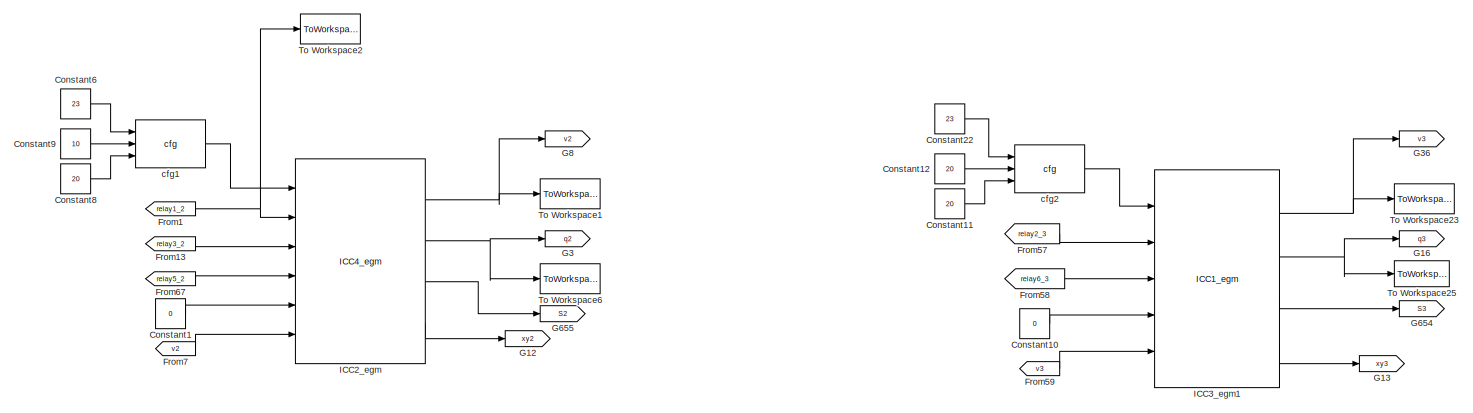
[diagram: root canvas - part 1/13, top center region]
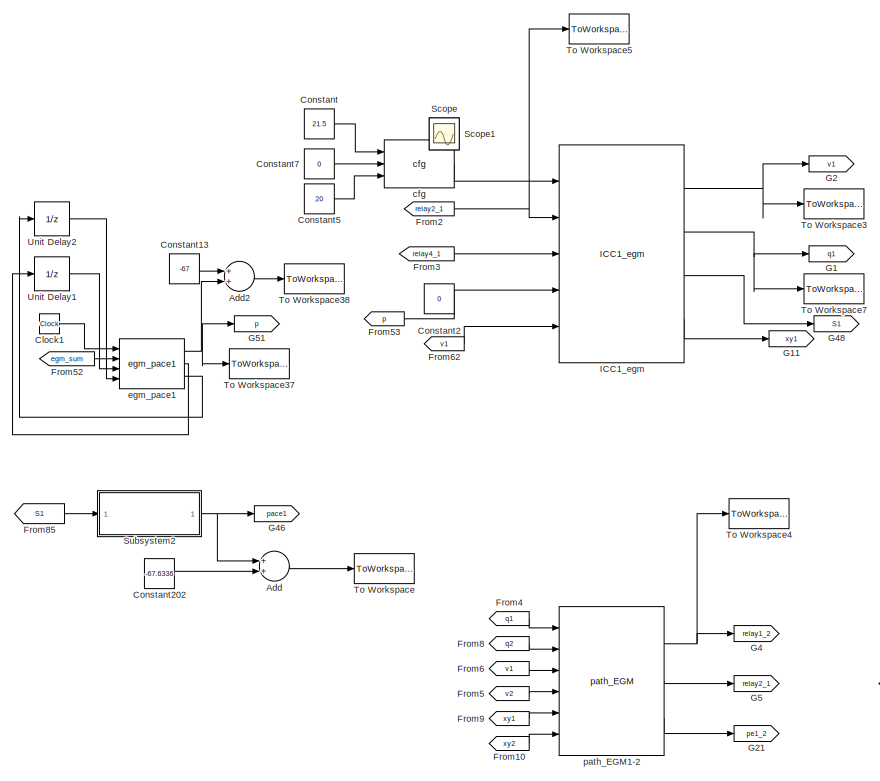
[diagram: root canvas - part 2/13, top left region]
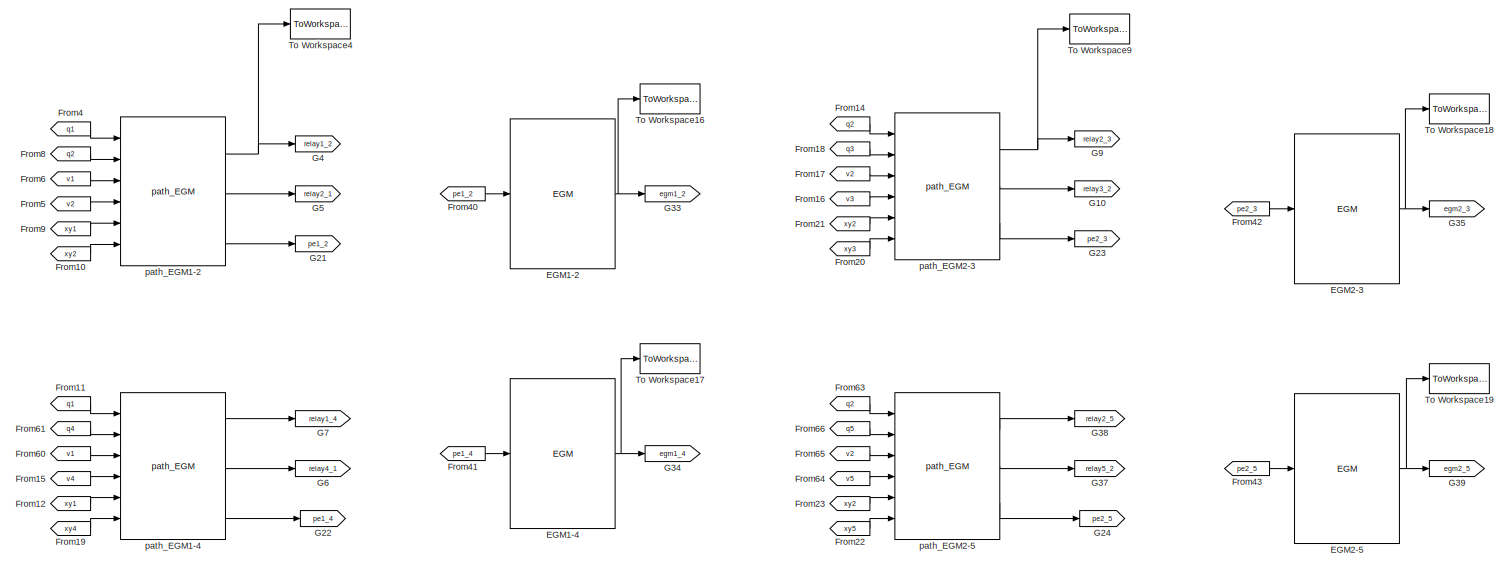
[diagram: root canvas - part 3/13, top left region]
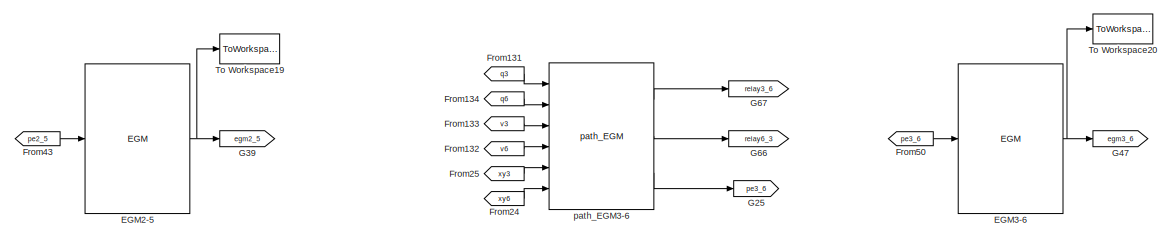
[diagram: root canvas - part 4/13, top center region]
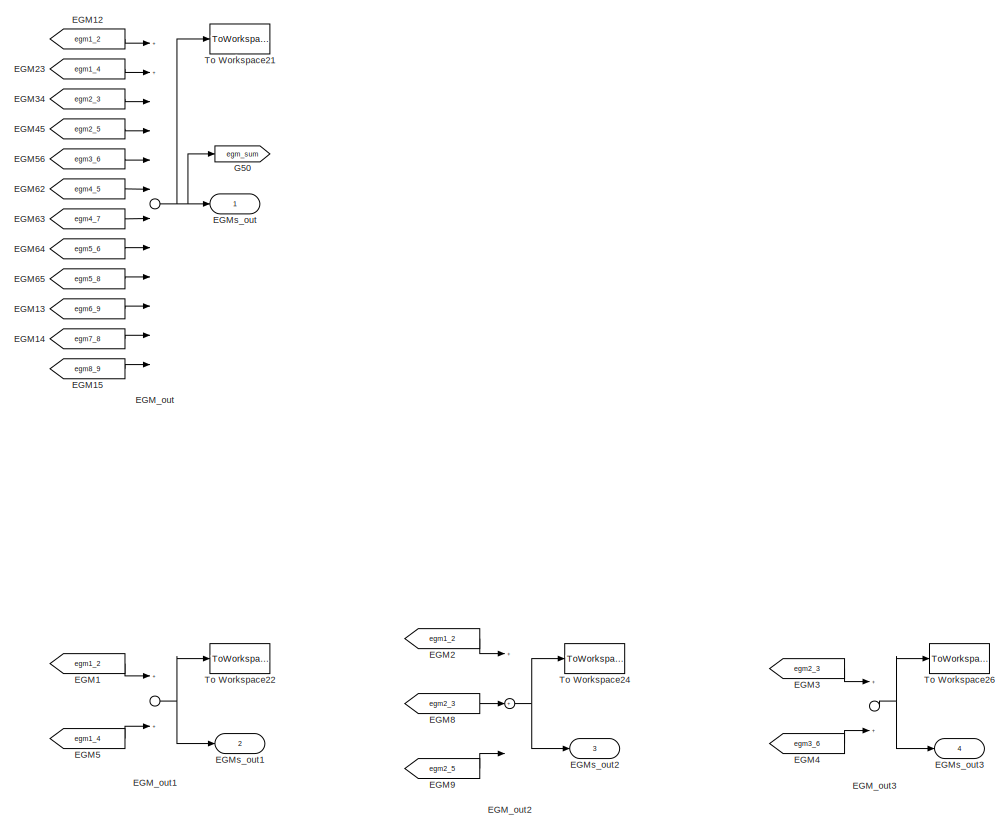
[diagram: root canvas - part 5/13, middle right region]
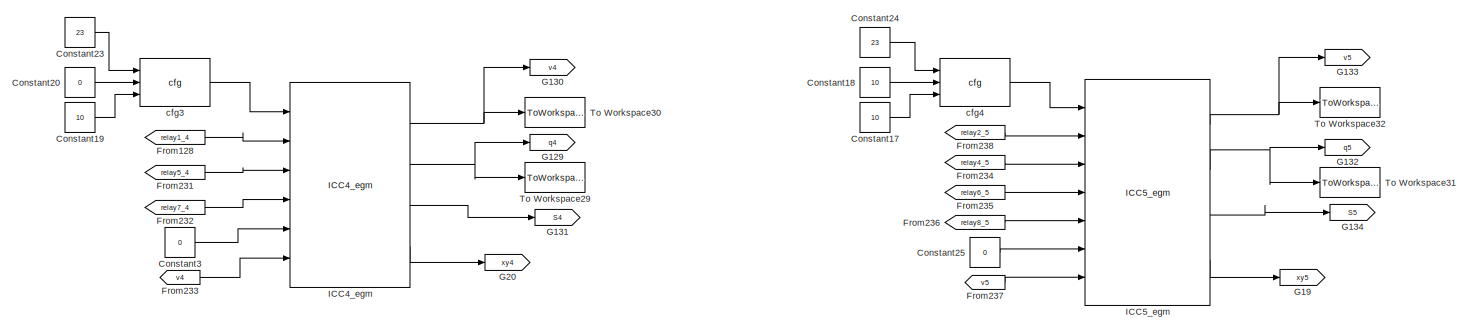
[diagram: root canvas - part 6/13, middle left region]
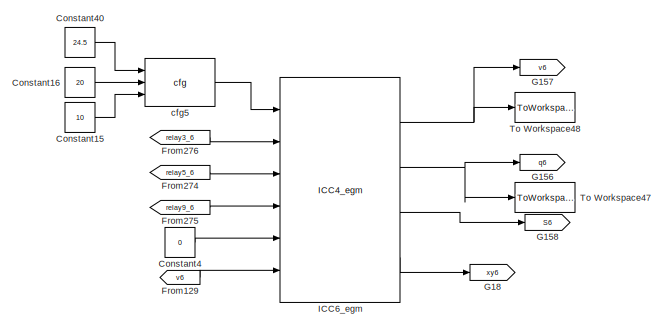
[diagram: root canvas - part 7/13, central region]
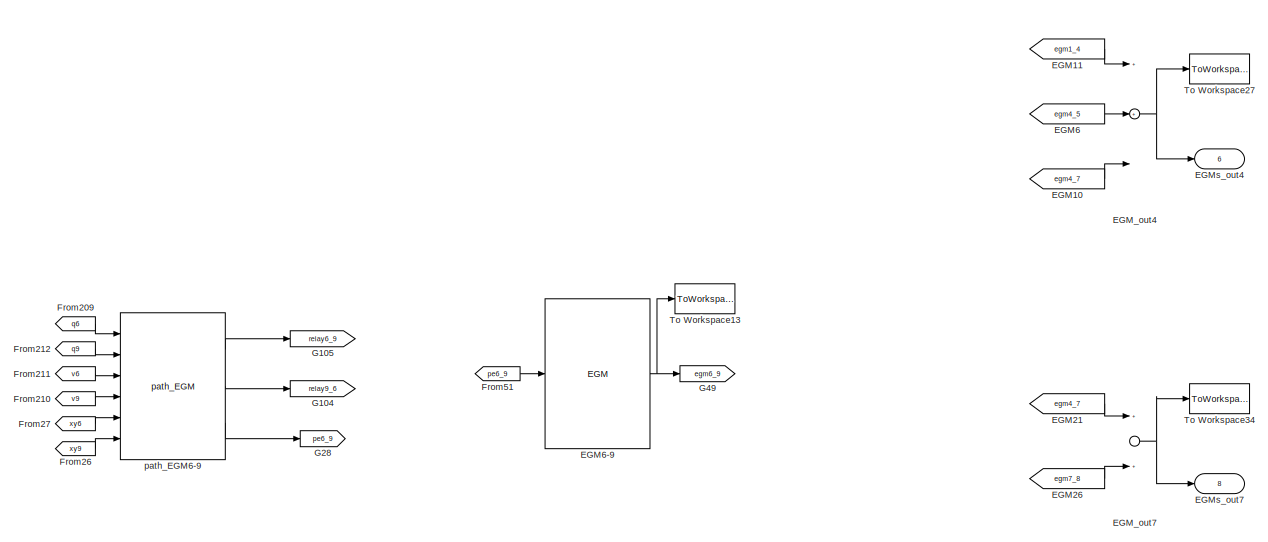
[diagram: root canvas - part 8/13, central region]
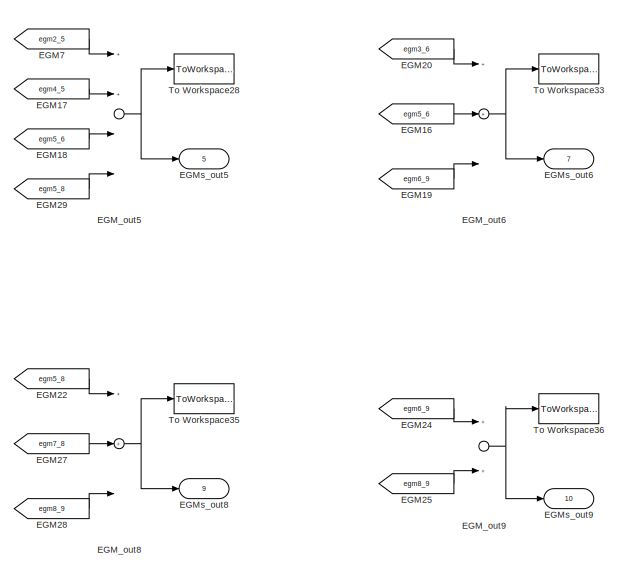
[diagram: root canvas - part 9/13, middle right region]
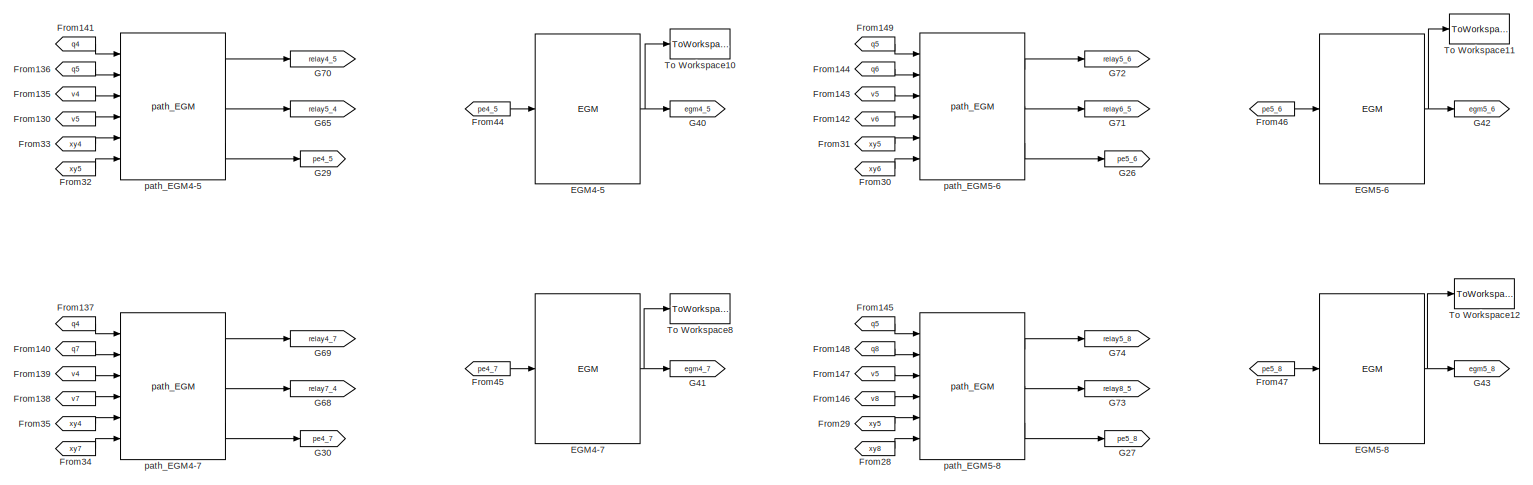
[diagram: root canvas - part 10/13, middle left region]
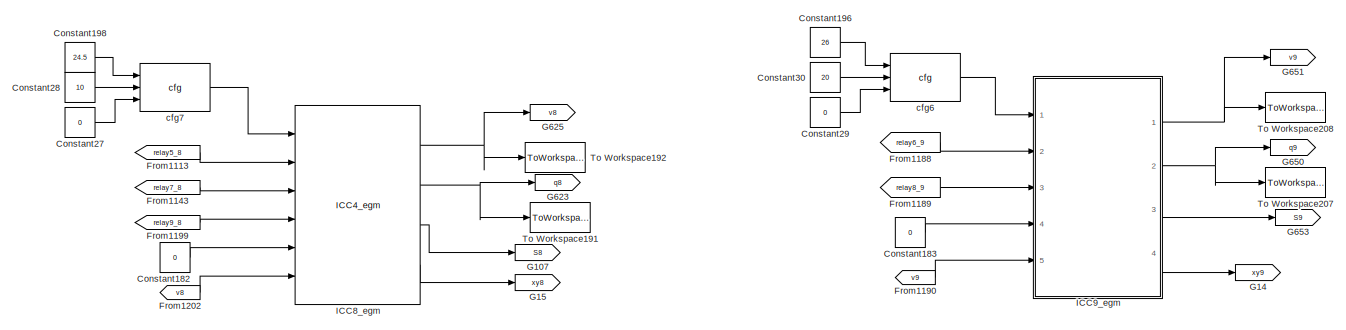
[diagram: root canvas - part 11/13, bottom center region]
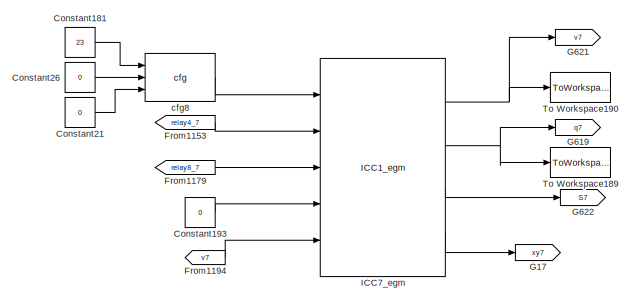
[diagram: root canvas - part 12/13, bottom left region]
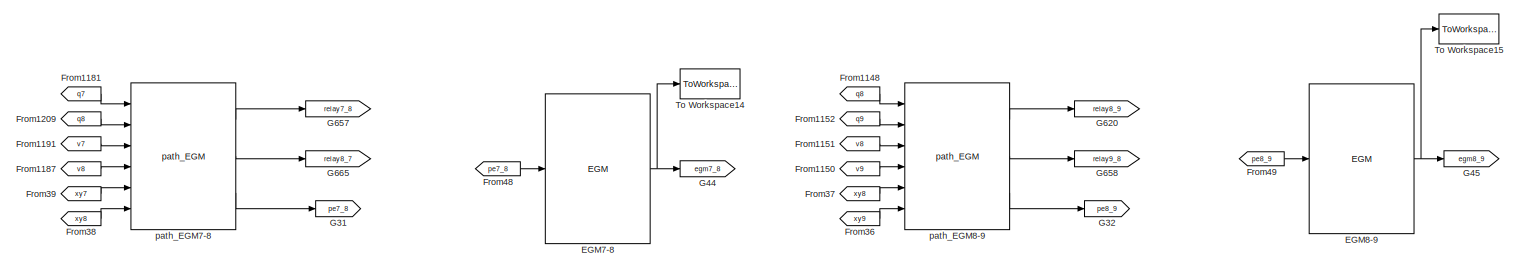
[diagram: root canvas - part 13/13, bottom left region]
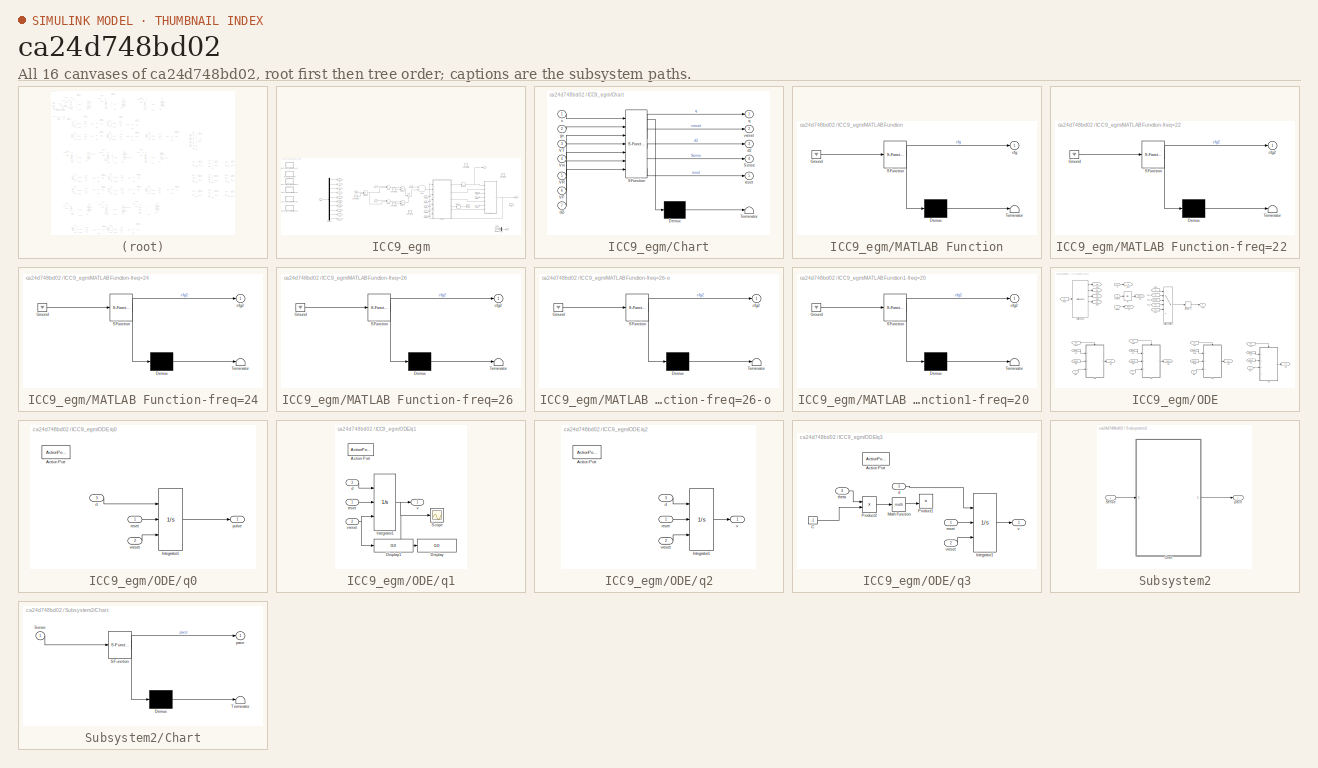
[diagram: thumbnail index - all 16 canvases of the model, root first then tree order]
MODEL slx_ca24d748bd02
KIND model
CONFIG AbsTol = auto
CONFIG EnableMultiTasking = off
CONFIG FixedStep = 0.001
CONFIG MaxStep = auto
CONFIG MinStep = auto
CONFIG RelTol = 1e-3
CONFIG SampleTimeConstraint = Unconstrained
CONFIG Solver = ode1
CONFIG SolverName = ode1
CONFIG StartTime = 0.0
CONFIG StopTime = 200
BLOCK [Sum] Add
  InputSameDT = off
  OutDataTypeStr = Inherit: Inherit via internal rule
  Ports = [2, 1]
  SaturateOnIntegerOverflow = off
BLOCK [Sum] Add2
  InputSameDT = off
  OutDataTypeStr = Inherit: Inherit via internal rule
  Ports = [2, 1]
  SaturateOnIntegerOverflow = off
BLOCK [Clock] Clock1
BLOCK [Constant] Constant
  Value = 21.5
BLOCK [Constant] Constant1
  Value = 0
BLOCK [Constant] Constant10
  Value = 0
BLOCK [Constant] Constant11
  Value = 20
BLOCK [Constant] Constant12
  Value = 20
BLOCK [Constant] Constant13
  Value = -67
BLOCK [Constant] Constant15
  Value = 10
BLOCK [Constant] Constant16
  Value = 20
BLOCK [Constant] Constant17
  Value = 10
BLOCK [Constant] Constant18
  Value = 10
BLOCK [Constant] Constant181
  Value = 23
BLOCK [Constant] Constant182
  Value = 0
BLOCK [Constant] Constant183
  Value = 0
BLOCK [Constant] Constant19
  Value = 10
BLOCK [Constant] Constant193
  Value = 0
BLOCK [Constant] Constant196
  Value = 26
BLOCK [Constant] Constant198
  Value = 24.5
BLOCK [Constant] Constant2
  Value = 0
BLOCK [Constant] Constant20
  Value = 0
BLOCK [Constant] Constant202
  Value = -67.6336
BLOCK [Constant] Constant21
  Value = 0
BLOCK [Constant] Constant22
  Value = 23
BLOCK [Constant] Constant23
  Value = 23
BLOCK [Constant] Constant24
  Value = 23
BLOCK [Constant] Constant25
  Value = 0
BLOCK [Constant] Constant26
  Value = 0
BLOCK [Constant] Constant27
  Value = 0
BLOCK [Constant] Constant28
  Value = 10
BLOCK [Constant] Constant29
  Value = 0
BLOCK [Constant] Constant3
  Value = 0
BLOCK [Constant] Constant30
  Value = 20
BLOCK [Constant] Constant4
  Value = 0
BLOCK [Constant] Constant40
  Value = 24.5
BLOCK [Constant] Constant5
  Value = 20
BLOCK [Constant] Constant6
  Value = 23
BLOCK [Constant] Constant7
  Value = 0
BLOCK [Constant] Constant8
  Value = 20
BLOCK [Constant] Constant9
  Value = 10
BLOCK [From] EGM1
  GotoTag = egm1_2
BLOCK [Reference] EGM1-2  REF=icc_lib_avg_path1_n1/EGM  (lib defined in slx_1f48d7527c07)
  Ports = [1, 1]
  SourceBlock = icc_lib_avg_path1_n1/EGM
  SourceType = SubSystem
BLOCK [Reference] EGM1-4  REF=icc_lib_avg_path1_n1/EGM  (lib defined in slx_1f48d7527c07)
  Ports = [1, 1]
  SourceBlock = icc_lib_avg_path1_n1/EGM
  SourceType = SubSystem
BLOCK [From] EGM10
  GotoTag = egm4_7
BLOCK [From] EGM11
  GotoTag = egm1_4
BLOCK [From] EGM12
  GotoTag = egm1_2
BLOCK [From] EGM13
  GotoTag = egm6_9
BLOCK [From] EGM14
  GotoTag = egm7_8
BLOCK [From] EGM15
  GotoTag = egm8_9
BLOCK [From] EGM16
  GotoTag = egm5_6
BLOCK [From] EGM17
  GotoTag = egm4_5
BLOCK [From] EGM18
  GotoTag = egm5_6
BLOCK [From] EGM19
  GotoTag = egm6_9
BLOCK [From] EGM2
  GotoTag = egm1_2
BLOCK [Reference] EGM2-3  REF=icc_lib_avg_path1_n1/EGM  (lib defined in slx_1f48d7527c07)
  Ports = [1, 1]
  SourceBlock = icc_lib_avg_path1_n1/EGM
  SourceType = SubSystem
BLOCK [Reference] EGM2-5  REF=icc_lib_avg_path1_n1/EGM  (lib defined in slx_1f48d7527c07)
  Ports = [1, 1]
  SourceBlock = icc_lib_avg_path1_n1/EGM
  SourceType = SubSystem
BLOCK [From] EGM20
  GotoTag = egm3_6
BLOCK [From] EGM21
  GotoTag = egm4_7
BLOCK [From] EGM22
  GotoTag = egm5_8
BLOCK [From] EGM23
  GotoTag = egm1_4
BLOCK [From] EGM24
  GotoTag = egm6_9
BLOCK [From] EGM25
  GotoTag = egm8_9
BLOCK [From] EGM26
  GotoTag = egm7_8
BLOCK [From] EGM27
  GotoTag = egm7_8
BLOCK [From] EGM28
  GotoTag = egm8_9
BLOCK [From] EGM29
  GotoTag = egm5_8
BLOCK [From] EGM3
  GotoTag = egm2_3
BLOCK [Reference] EGM3-6  REF=icc_lib_avg_path1_n1/EGM  (lib defined in slx_1f48d7527c07)
  Ports = [1, 1]
  SourceBlock = icc_lib_avg_path1_n1/EGM
  SourceType = SubSystem
BLOCK [From] EGM34
  GotoTag = egm2_3
BLOCK [From] EGM4
  GotoTag = egm3_6
BLOCK [Reference] EGM4-5  REF=icc_lib_avg_path1_n1/EGM  (lib defined in slx_1f48d7527c07)
  Ports = [1, 1]
  SourceBlock = icc_lib_avg_path1_n1/EGM
  SourceType = SubSystem
BLOCK [Reference] EGM4-7  REF=icc_lib_avg_path1_n1/EGM  (lib defined in slx_1f48d7527c07)
  Ports = [1, 1]
  SourceBlock = icc_lib_avg_path1_n1/EGM
  SourceType = SubSystem
BLOCK [From] EGM45
  GotoTag = egm2_5
BLOCK [From] EGM5
  GotoTag = egm1_4
BLOCK [Reference] EGM5-6  REF=icc_lib_avg_path1_n1/EGM  (lib defined in slx_1f48d7527c07)
  Ports = [1, 1]
  SourceBlock = icc_lib_avg_path1_n1/EGM
  SourceType = SubSystem
BLOCK [Reference] EGM5-8  REF=icc_lib_avg_path1_n1/EGM  (lib defined in slx_1f48d7527c07)
  Ports = [1, 1]
  SourceBlock = icc_lib_avg_path1_n1/EGM
  SourceType = SubSystem
BLOCK [From] EGM56
  GotoTag = egm3_6
BLOCK [From] EGM6
  GotoTag = egm4_5
BLOCK [Reference] EGM6-9  REF=icc_lib_avg_path1_n1/EGM  (lib defined in slx_1f48d7527c07)
  Ports = [1, 1]
  SourceBlock = icc_lib_avg_path1_n1/EGM
  SourceType = SubSystem
BLOCK [From] EGM62
  GotoTag = egm4_5
BLOCK [From] EGM63
  GotoTag = egm4_7
BLOCK [From] EGM64
  GotoTag = egm5_6
BLOCK [From] EGM65
  GotoTag = egm5_8
BLOCK [From] EGM7
  GotoTag = egm2_5
BLOCK [Reference] EGM7-8  REF=icc_lib_avg_path1_n1/EGM  (lib defined in slx_1f48d7527c07)
  Ports = [1, 1]
  SourceBlock = icc_lib_avg_path1_n1/EGM
  SourceType = SubSystem
BLOCK [From] EGM8
  GotoTag = egm2_3
BLOCK [Reference] EGM8-9  REF=icc_lib_avg_path1_n1/EGM  (lib defined in slx_1f48d7527c07)
  Ports = [1, 1]
  SourceBlock = icc_lib_avg_path1_n1/EGM
  SourceType = SubSystem
BLOCK [From] EGM9
  GotoTag = egm2_5
BLOCK [Sum] EGM_out
  InputSameDT = off
  Inputs = 12
  OutDataTypeStr = Inherit: Inherit via internal rule
  Ports = [12, 1]
  SaturateOnIntegerOverflow = off
BLOCK [Sum] EGM_out1
  InputSameDT = off
  Inputs = 2
  OutDataTypeStr = Inherit: Inherit via internal rule
  Ports = [2, 1]
  SaturateOnIntegerOverflow = off
BLOCK [Sum] EGM_out2
  InputSameDT = off
  Inputs = 3
  OutDataTypeStr = Inherit: Inherit via internal rule
  Ports = [3, 1]
  SaturateOnIntegerOverflow = off
BLOCK [Sum] EGM_out3
  InputSameDT = off
  Inputs = 2
  OutDataTypeStr = Inherit: Inherit via internal rule
  Ports = [2, 1]
  SaturateOnIntegerOverflow = off
BLOCK [Sum] EGM_out4
  InputSameDT = off
  Inputs = 3
  OutDataTypeStr = Inherit: Inherit via internal rule
  Ports = [3, 1]
  SaturateOnIntegerOverflow = off
BLOCK [Sum] EGM_out5
  InputSameDT = off
  Inputs = 4
  OutDataTypeStr = Inherit: Inherit via internal rule
  Ports = [4, 1]
  SaturateOnIntegerOverflow = off
BLOCK [Sum] EGM_out6
  InputSameDT = off
  Inputs = 3
  OutDataTypeStr = Inherit: Inherit via internal rule
  Ports = [3, 1]
  SaturateOnIntegerOverflow = off
BLOCK [Sum] EGM_out7
  InputSameDT = off
  Inputs = 2
  OutDataTypeStr = Inherit: Inherit via internal rule
  Ports = [2, 1]
  SaturateOnIntegerOverflow = off
BLOCK [Sum] EGM_out8
  InputSameDT = off
  Inputs = 3
  OutDataTypeStr = Inherit: Inherit via internal rule
  Ports = [3, 1]
  SaturateOnIntegerOverflow = off
BLOCK [Sum] EGM_out9
  InputSameDT = off
  Inputs = 2
  OutDataTypeStr = Inherit: Inherit via internal rule
  Ports = [2, 1]
  SaturateOnIntegerOverflow = off
BLOCK [Outport] EGMs_out
  IconDisplay = Port number
BLOCK [Outport] EGMs_out1
  IconDisplay = Port number
  Port = 2
BLOCK [Outport] EGMs_out2
  IconDisplay = Port number
  Port = 3
BLOCK [Outport] EGMs_out3
  IconDisplay = Port number
  Port = 4
BLOCK [Outport] EGMs_out4
  IconDisplay = Port number
  Port = 6
BLOCK [Outport] EGMs_out5
  IconDisplay = Port number
  Port = 5
BLOCK [Outport] EGMs_out6
  IconDisplay = Port number
  Port = 7
BLOCK [Outport] EGMs_out7
  IconDisplay = Port number
  Port = 8
BLOCK [Outport] EGMs_out8
  IconDisplay = Port number
  Port = 9
BLOCK [Outport] EGMs_out9
  IconDisplay = Port number
  Port = 10
BLOCK [From] From1
  GotoTag = relay1_2
BLOCK [From] From10
  GotoTag = xy2
BLOCK [From] From11
  GotoTag = q1
BLOCK [From] From1113
  GotoTag = relay5_8
BLOCK [From] From1143
  GotoTag = relay7_8
BLOCK [From] From1148
  GotoTag = q8
BLOCK [From] From1150
  GotoTag = v9
BLOCK [From] From1151
  GotoTag = v8
BLOCK [From] From1152
  GotoTag = q9
BLOCK [From] From1153
  GotoTag = relay4_7
BLOCK [From] From1179
  GotoTag = relay8_7
BLOCK [From] From1181
  GotoTag = q7
BLOCK [From] From1187
  GotoTag = v8
BLOCK [From] From1188
  GotoTag = relay6_9
BLOCK [From] From1189
  GotoTag = relay8_9
BLOCK [From] From1190
  GotoTag = v9
BLOCK [From] From1191
  GotoTag = v7
BLOCK [From] From1194
  GotoTag = v7
BLOCK [From] From1199
  GotoTag = relay9_8
BLOCK [From] From12
  GotoTag = xy1
BLOCK [From] From1202
  GotoTag = v8
BLOCK [From] From1209
  GotoTag = q8
BLOCK [From] From128
  GotoTag = relay1_4
BLOCK [From] From129
  GotoTag = v6
BLOCK [From] From13
  GotoTag = relay3_2
BLOCK [From] From130
  GotoTag = v5
BLOCK [From] From131
  GotoTag = q3
BLOCK [From] From132
  GotoTag = v6
BLOCK [From] From133
  GotoTag = v3
BLOCK [From] From134
  GotoTag = q6
BLOCK [From] From135
  GotoTag = v4
BLOCK [From] From136
  GotoTag = q5
BLOCK [From] From137
  GotoTag = q4
BLOCK [From] From138
  GotoTag = v7
BLOCK [From] From139
  GotoTag = v4
BLOCK [From] From14
  GotoTag = q2
BLOCK [From] From140
  GotoTag = q7
BLOCK [From] From141
  GotoTag = q4
BLOCK [From] From142
  GotoTag = v6
BLOCK [From] From143
  GotoTag = v5
BLOCK [From] From144
  GotoTag = q6
BLOCK [From] From145
  GotoTag = q5
BLOCK [From] From146
  GotoTag = v8
BLOCK [From] From147
  GotoTag = v5
BLOCK [From] From148
  GotoTag = q8
BLOCK [From] From149
  GotoTag = q5
BLOCK [From] From15
  GotoTag = v4
BLOCK [From] From16
  GotoTag = v3
BLOCK [From] From17
  GotoTag = v2
BLOCK [From] From18
  GotoTag = q3
BLOCK [From] From19
  GotoTag = xy4
BLOCK [From] From2
  GotoTag = relay2_1
BLOCK [From] From20
  GotoTag = xy3
BLOCK [From] From209
  GotoTag = q6
BLOCK [From] From21
  GotoTag = xy2
BLOCK [From] From210
  GotoTag = v9
BLOCK [From] From211
  GotoTag = v6
BLOCK [From] From212
  GotoTag = q9
BLOCK [From] From22
  GotoTag = xy5
BLOCK [From] From23
  GotoTag = xy2
BLOCK [From] From231
  GotoTag = relay5_4
BLOCK [From] From232
  GotoTag = relay7_4
BLOCK [From] From233
  GotoTag = v4
BLOCK [From] From234
  GotoTag = relay4_5
BLOCK [From] From235
  GotoTag = relay6_5
BLOCK [From] From236
  GotoTag = relay8_5
BLOCK [From] From237
  GotoTag = v5
BLOCK [From] From238
  GotoTag = relay2_5
BLOCK [From] From24
  GotoTag = xy6
BLOCK [From] From25
  GotoTag = xy3
BLOCK [From] From26
  GotoTag = xy9
BLOCK [From] From27
  GotoTag = xy6
BLOCK [From] From274
  GotoTag = relay5_6
BLOCK [From] From275
  GotoTag = relay9_6
BLOCK [From] From276
  GotoTag = relay3_6
BLOCK [From] From28
  GotoTag = xy8
BLOCK [From] From29
  GotoTag = xy5
BLOCK [From] From3
  GotoTag = relay4_1
BLOCK [From] From30
  GotoTag = xy6
BLOCK [From] From31
  GotoTag = xy5
BLOCK [From] From32
  GotoTag = xy5
BLOCK [From] From33
  GotoTag = xy4
BLOCK [From] From34
  GotoTag = xy7
BLOCK [From] From35
  GotoTag = xy4
BLOCK [From] From36
  GotoTag = xy9
BLOCK [From] From37
  GotoTag = xy8
BLOCK [From] From38
  GotoTag = xy8
BLOCK [From] From39
  GotoTag = xy7
BLOCK [From] From4
  GotoTag = q1
BLOCK [From] From40
  GotoTag = pe1_2
BLOCK [From] From41
  GotoTag = pe1_4
BLOCK [From] From42
  GotoTag = pe2_3
BLOCK [From] From43
  GotoTag = pe2_5
BLOCK [From] From44
  GotoTag = pe4_5
BLOCK [From] From45
  GotoTag = pe4_7
BLOCK [From] From46
  GotoTag = pe5_6
BLOCK [From] From47
  GotoTag = pe5_8
BLOCK [From] From48
  GotoTag = pe7_8
BLOCK [From] From49
  GotoTag = pe8_9
BLOCK [From] From5
  GotoTag = v2
BLOCK [From] From50
  GotoTag = pe3_6
BLOCK [From] From51
  GotoTag = pe6_9
BLOCK [From] From52
  GotoTag = egm_sum
BLOCK [From] From53
  GotoTag = p
BLOCK [From] From57
  GotoTag = relay2_3
BLOCK [From] From58
  GotoTag = relay6_3
BLOCK [From] From59
  GotoTag = v3
BLOCK [From] From6
  GotoTag = v1
BLOCK [From] From60
  GotoTag = v1
BLOCK [From] From61
  GotoTag = q4
BLOCK [From] From62
  GotoTag = v1
BLOCK [From] From63
  GotoTag = q2
BLOCK [From] From64
  GotoTag = v5
BLOCK [From] From65
  GotoTag = v2
BLOCK [From] From66
  GotoTag = q5
BLOCK [From] From67
  GotoTag = relay5_2
BLOCK [From] From7
  GotoTag = v2
BLOCK [From] From8
  GotoTag = q2
BLOCK [From] From85
  GotoTag = S1
BLOCK [From] From9
  GotoTag = xy1
BLOCK [Goto] G1
  GotoTag = q1
BLOCK [Goto] G10
  GotoTag = relay3_2
BLOCK [Goto] G104
  GotoTag = relay9_6
BLOCK [Goto] G105
  GotoTag = relay6_9
BLOCK [Goto] G107
  GotoTag = S8
BLOCK [Goto] G11
  GotoTag = xy1
BLOCK [Goto] G12
  GotoTag = xy2
BLOCK [Goto] G129
  GotoTag = q4
BLOCK [Goto] G13
  GotoTag = xy3
BLOCK [Goto] G130
  GotoTag = v4
BLOCK [Goto] G131
  GotoTag = S4
BLOCK [Goto] G132
  GotoTag = q5
BLOCK [Goto] G133
  GotoTag = v5
BLOCK [Goto] G134
  GotoTag = S5
BLOCK [Goto] G14
  GotoTag = xy9
BLOCK [Goto] G15
  GotoTag = xy8
BLOCK [Goto] G156
  GotoTag = q6
BLOCK [Goto] G157
  GotoTag = v6
BLOCK [Goto] G158
  GotoTag = S6
BLOCK [Goto] G16
  GotoTag = q3
BLOCK [Goto] G17
  GotoTag = xy7
BLOCK [Goto] G18
  GotoTag = xy6
BLOCK [Goto] G19
  GotoTag = xy5
BLOCK [Goto] G2
  GotoTag = v1
BLOCK [Goto] G20
  GotoTag = xy4
BLOCK [Goto] G21
  GotoTag = pe1_2
BLOCK [Goto] G22
  GotoTag = pe1_4
BLOCK [Goto] G23
  GotoTag = pe2_3
BLOCK [Goto] G24
  GotoTag = pe2_5
BLOCK [Goto] G25
  GotoTag = pe3_6
BLOCK [Goto] G26
  GotoTag = pe5_6
BLOCK [Goto] G27
  GotoTag = pe5_8
BLOCK [Goto] G28
  GotoTag = pe6_9
BLOCK [Goto] G29
  GotoTag = pe4_5
BLOCK [Goto] G3
  GotoTag = q2
BLOCK [Goto] G30
  GotoTag = pe4_7
BLOCK [Goto] G31
  GotoTag = pe7_8
BLOCK [Goto] G32
  GotoTag = pe8_9
BLOCK [Goto] G33
  GotoTag = egm1_2
BLOCK [Goto] G34
  GotoTag = egm1_4
BLOCK [Goto] G35
  GotoTag = egm2_3
BLOCK [Goto] G36
  GotoTag = v3
BLOCK [Goto] G37
  GotoTag = relay5_2
BLOCK [Goto] G38
  GotoTag = relay2_5
BLOCK [Goto] G39
  GotoTag = egm2_5
BLOCK [Goto] G4
  GotoTag = relay1_2
BLOCK [Goto] G40
  GotoTag = egm4_5
BLOCK [Goto] G41
  GotoTag = egm4_7
BLOCK [Goto] G42
  GotoTag = egm5_6
BLOCK [Goto] G43
  GotoTag = egm5_8
BLOCK [Goto] G44
  GotoTag = egm7_8
BLOCK [Goto] G45
  GotoTag = egm8_9
BLOCK [Goto] G46
  GotoTag = pace1
BLOCK [Goto] G47
  GotoTag = egm3_6
BLOCK [Goto] G48
  GotoTag = S1
BLOCK [Goto] G49
  GotoTag = egm6_9
BLOCK [Goto] G5
  GotoTag = relay2_1
BLOCK [Goto] G50
  GotoTag = egm_sum
BLOCK [Goto] G51
  GotoTag = p
BLOCK [Goto] G6
  GotoTag = relay4_1
BLOCK [Goto] G619
  GotoTag = q7
BLOCK [Goto] G620
  GotoTag = relay8_9
BLOCK [Goto] G621
  GotoTag = v7
BLOCK [Goto] G622
  GotoTag = S7
BLOCK [Goto] G623
  GotoTag = q8
BLOCK [Goto] G625
  GotoTag = v8
BLOCK [Goto] G65
  GotoTag = relay5_4
BLOCK [Goto] G650
  GotoTag = q9
BLOCK [Goto] G651
  GotoTag = v9
BLOCK [Goto] G653
  GotoTag = S9
BLOCK [Goto] G654
  GotoTag = S3
BLOCK [Goto] G655
  GotoTag = S2
BLOCK [Goto] G657
  GotoTag = relay7_8
BLOCK [Goto] G658
  GotoTag = relay9_8
BLOCK [Goto] G66
  GotoTag = relay6_3
BLOCK [Goto] G665
  GotoTag = relay8_7
BLOCK [Goto] G67
  GotoTag = relay3_6
BLOCK [Goto] G68
  GotoTag = relay7_4
BLOCK [Goto] G69
  GotoTag = relay4_7
BLOCK [Goto] G7
  GotoTag = relay1_4
BLOCK [Goto] G70
  GotoTag = relay4_5
BLOCK [Goto] G71
  GotoTag = relay6_5
BLOCK [Goto] G72
  GotoTag = relay5_6
BLOCK [Goto] G73
  GotoTag = relay8_5
BLOCK [Goto] G74
  GotoTag = relay5_8
BLOCK [Goto] G8
  GotoTag = v2
BLOCK [Goto] G9
  GotoTag = relay2_3
BLOCK [Reference] ICC1_egm  REF=icc_lib_avg_path1_n1/ICC1_egm  (lib defined in slx_1f48d7527c07)
  Ports = [5, 4]
  SourceBlock = icc_lib_avg_path1_n1/ICC1_egm
  SourceType = SubSystem
BLOCK [Reference] ICC2_egm  REF=icc_lib_avg_path1_n1/ICC4_egm  (lib defined in slx_1f48d7527c07)
  Ports = [6, 4]
  SourceBlock = icc_lib_avg_path1_n1/ICC4_egm
  SourceType = SubSystem
BLOCK [Reference] ICC3_egm1  REF=icc_lib_avg_path1_n1/ICC1_egm  (lib defined in slx_1f48d7527c07)
  Ports = [5, 4]
  SourceBlock = icc_lib_avg_path1_n1/ICC1_egm
  SourceType = SubSystem
BLOCK [Reference] ICC4_egm  REF=icc_lib_avg_path1_n1/ICC4_egm  (lib defined in slx_1f48d7527c07)
  Ports = [6, 4]
  SourceBlock = icc_lib_avg_path1_n1/ICC4_egm
  SourceType = SubSystem
BLOCK [Reference] ICC5_egm  REF=icc_lib_avg_path1_n1/ICC5_egm  (lib defined in slx_1f48d7527c07)
  Ports = [7, 4]
  SourceBlock = icc_lib_avg_path1_n1/ICC5_egm
  SourceType = SubSystem
BLOCK [Reference] ICC6_egm  REF=icc_lib_avg_path1_n1/ICC4_egm  (lib defined in slx_1f48d7527c07)
  Ports = [6, 4]
  SourceBlock = icc_lib_avg_path1_n1/ICC4_egm
  SourceType = SubSystem
BLOCK [Reference] ICC7_egm  REF=icc_lib_avg_path1_n1/ICC1_egm  (lib defined in slx_1f48d7527c07)
  Ports = [5, 4]
  SourceBlock = icc_lib_avg_path1_n1/ICC1_egm
  SourceType = SubSystem
BLOCK [Reference] ICC8_egm  REF=icc_lib_avg_path1_n1/ICC4_egm  (lib defined in slx_1f48d7527c07)
  Ports = [6, 4]
  SourceBlock = icc_lib_avg_path1_n1/ICC4_egm
  SourceType = SubSystem
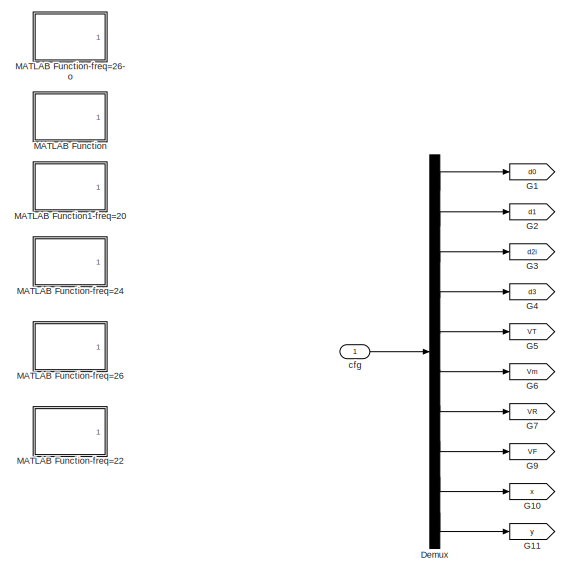
[diagram: ICC9_egm - part 1/2, left side, full height]
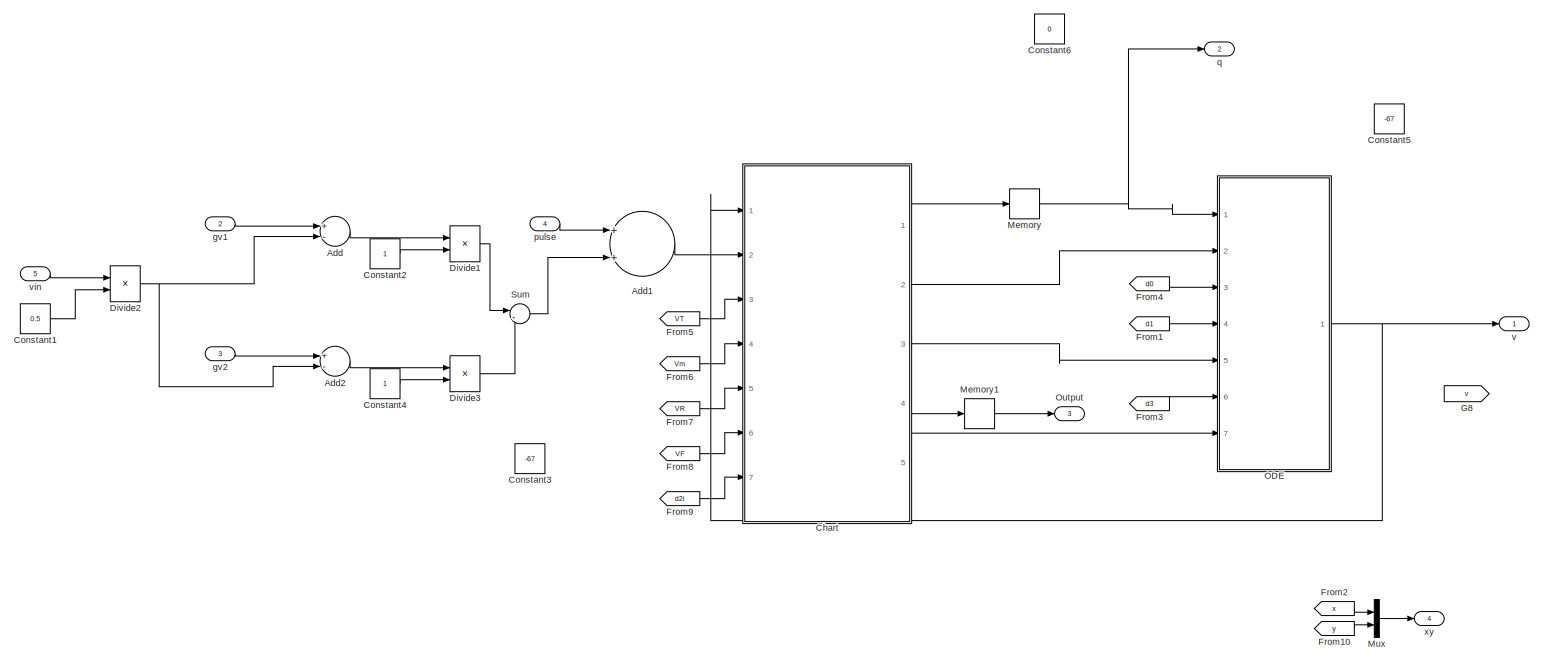
[diagram: ICC9_egm - part 2/2, center side, full height]
BLOCK [SubSystem] ICC9_egm
  AncestorBlock = icc_lib_avg_path1_n1/ICC1_egm
  Ports = [5, 4]
  RequestExecContextInheritance = off
BLOCK [Sum] ICC9_egm/Add
  InputSameDT = off
  Inputs = +-
  OutDataTypeStr = Inherit: Inherit via internal rule
  Ports = [2, 1]
  SaturateOnIntegerOverflow = off
BLOCK [Sum] ICC9_egm/Add1
  InputSameDT = off
  OutDataTypeStr = Inherit: Inherit via internal rule
  Ports = [2, 1]
  SaturateOnIntegerOverflow = off
BLOCK [Sum] ICC9_egm/Add2
  InputSameDT = off
  Inputs = +-
  OutDataTypeStr = Inherit: Inherit via internal rule
  Ports = [2, 1]
  SaturateOnIntegerOverflow = off
BLOCK [SubSystem] ICC9_egm/Chart
  ErrorFcn = Stateflow.Translate.translate
  PermitHierarchicalResolution = ExplicitOnly
  Ports = [7, 5]
  RequestExecContextInheritance = off
  SFBlockType = Chart
  TreatAsAtomicUnit = on
BLOCK [Demux] ICC9_egm/Chart/ Demux 
  Outputs = 1
  Ports = [1, 1]
BLOCK [S-Function] ICC9_egm/Chart/ SFunction 
  EnableBusSupport = on
  FunctionName = sf_sfun
  PortCounts = [7 6]
  Ports = [7, 6]
  SFcnIsStateOwnerBlock = off
  SFunctionDeploymentMode = off
  Tag = Stateflow S-Function ICCNetwork9_2_nf_EGM3_p1 60
BLOCK [Terminator] ICC9_egm/Chart/ Terminator 
BLOCK [Outport] ICC9_egm/Chart/Sense
  IconDisplay = Port number
  Port = 4
BLOCK [Inport] ICC9_egm/Chart/VF
  IconDisplay = Port number
  Port = 6
BLOCK [Inport] ICC9_egm/Chart/VR
  IconDisplay = Port number
  Port = 5
BLOCK [Inport] ICC9_egm/Chart/VT
  IconDisplay = Port number
  Port = 3
BLOCK [Inport] ICC9_egm/Chart/Vm
  IconDisplay = Port number
  Port = 4
BLOCK [Outport] ICC9_egm/Chart/d2
  IconDisplay = Port number
  Port = 3
BLOCK [Inport] ICC9_egm/Chart/d2i
  IconDisplay = Port number
  Port = 7
BLOCK [Inport] ICC9_egm/Chart/gv
  IconDisplay = Port number
  Port = 2
BLOCK [Outport] ICC9_egm/Chart/q
  IconDisplay = Port number
BLOCK [Outport] ICC9_egm/Chart/reset
  IconDisplay = Port number
  Port = 5
BLOCK [Inport] ICC9_egm/Chart/v
  IconDisplay = Port number
BLOCK [Outport] ICC9_egm/Chart/vreset
  IconDisplay = Port number
  Port = 2
BLOCK [Constant] ICC9_egm/Constant1
  Value = 0.5
BLOCK [Constant] ICC9_egm/Constant2
BLOCK [Constant] ICC9_egm/Constant3
  Value = -67
BLOCK [Constant] ICC9_egm/Constant4
BLOCK [Constant] ICC9_egm/Constant5
  Value = -67
BLOCK [Constant] ICC9_egm/Constant6
  Value = 0
BLOCK [Demux] ICC9_egm/Demux
  DisplayOption = bar
  Outputs = 10
  Ports = [1, 10]
BLOCK [Product] ICC9_egm/Divide1
  CollapseDim = 2
  CollapseMode = Specified dimension
  InputSameDT = off
  OutDataTypeStr = Inherit: Inherit via internal rule
  Ports = [2, 1]
BLOCK [Product] ICC9_egm/Divide2
  CollapseDim = 2
  CollapseMode = Specified dimension
  InputSameDT = off
  OutDataTypeStr = Inherit: Inherit via internal rule
  Ports = [2, 1]
BLOCK [Product] ICC9_egm/Divide3
  CollapseDim = 2
  CollapseMode = Specified dimension
  InputSameDT = off
  OutDataTypeStr = Inherit: Inherit via internal rule
  Ports = [2, 1]
BLOCK [From] ICC9_egm/From1
  GotoTag = d1
BLOCK [From] ICC9_egm/From10
  GotoTag = y
BLOCK [From] ICC9_egm/From2
  GotoTag = x
BLOCK [From] ICC9_egm/From3
  GotoTag = d3
BLOCK [From] ICC9_egm/From4
  GotoTag = d0
BLOCK [From] ICC9_egm/From5
  GotoTag = VT
BLOCK [From] ICC9_egm/From6
  GotoTag = Vm
BLOCK [From] ICC9_egm/From7
  GotoTag = VR
BLOCK [From] ICC9_egm/From8
  GotoTag = VF
BLOCK [From] ICC9_egm/From9
  GotoTag = d2i
BLOCK [Goto] ICC9_egm/G1
  GotoTag = d0
BLOCK [Goto] ICC9_egm/G10
  GotoTag = x
BLOCK [Goto] ICC9_egm/G11
  GotoTag = y
BLOCK [Goto] ICC9_egm/G2
  GotoTag = d1
BLOCK [Goto] ICC9_egm/G3
  GotoTag = d2i
BLOCK [Goto] ICC9_egm/G4
  GotoTag = d3
BLOCK [Goto] ICC9_egm/G5
  GotoTag = VT
BLOCK [Goto] ICC9_egm/G6
  GotoTag = Vm
BLOCK [Goto] ICC9_egm/G7
  GotoTag = VR
BLOCK [Goto] ICC9_egm/G8
  GotoTag = v
BLOCK [Goto] ICC9_egm/G9
  GotoTag = VF
BLOCK [SubSystem] ICC9_egm/MATLAB Function
  ErrorFcn = Stateflow.Translate.translate
  PermitHierarchicalResolution = ExplicitOnly
  Ports = [0, 1]
  RequestExecContextInheritance = off
  SFBlockType = MATLAB Function
  TreatAsAtomicUnit = on
BLOCK [SubSystem] ICC9_egm/MATLAB Function-freq=22 
  ErrorFcn = Stateflow.Translate.translate
  PermitHierarchicalResolution = ExplicitOnly
  Ports = [0, 1]
  RequestExecContextInheritance = off
  SFBlockType = MATLAB Function
  TreatAsAtomicUnit = on
BLOCK [Demux] ICC9_egm/MATLAB Function-freq=22 / Demux 
  Outputs = 1
  Ports = [1, 1]
BLOCK [Ground] ICC9_egm/MATLAB Function-freq=22 / Ground 
BLOCK [S-Function] ICC9_egm/MATLAB Function-freq=22 / SFunction 
  EnableBusSupport = on
  FunctionName = sf_sfun
  PortCounts = [1 2]
  Ports = [1, 2]
  SFcnIsStateOwnerBlock = off
  SFunctionDeploymentMode = off
  Tag = Stateflow S-Function ICCNetwork9_2_nf_EGM3_p1 62
BLOCK [Terminator] ICC9_egm/MATLAB Function-freq=22 / Terminator 
BLOCK [Outport] ICC9_egm/MATLAB Function-freq=22 /cfg2
  IconDisplay = Port number
BLOCK [SubSystem] ICC9_egm/MATLAB Function-freq=24
  ErrorFcn = Stateflow.Translate.translate
  PermitHierarchicalResolution = ExplicitOnly
  Ports = [0, 1]
  RequestExecContextInheritance = off
  SFBlockType = MATLAB Function
  TreatAsAtomicUnit = on
BLOCK [Demux] ICC9_egm/MATLAB Function-freq=24/ Demux 
  Outputs = 1
  Ports = [1, 1]
BLOCK [Ground] ICC9_egm/MATLAB Function-freq=24/ Ground 
BLOCK [S-Function] ICC9_egm/MATLAB Function-freq=24/ SFunction 
  EnableBusSupport = on
  FunctionName = sf_sfun
  PortCounts = [1 2]
  Ports = [1, 2]
  SFcnIsStateOwnerBlock = off
  SFunctionDeploymentMode = off
  Tag = Stateflow S-Function ICCNetwork9_2_nf_EGM3_p1 63
BLOCK [Terminator] ICC9_egm/MATLAB Function-freq=24/ Terminator 
BLOCK [Outport] ICC9_egm/MATLAB Function-freq=24/cfg2
  IconDisplay = Port number
BLOCK [SubSystem] ICC9_egm/MATLAB Function-freq=26 
  ErrorFcn = Stateflow.Translate.translate
  PermitHierarchicalResolution = ExplicitOnly
  Ports = [0, 1]
  RequestExecContextInheritance = off
  SFBlockType = MATLAB Function
  TreatAsAtomicUnit = on
BLOCK [Demux] ICC9_egm/MATLAB Function-freq=26 / Demux 
  Outputs = 1
  Ports = [1, 1]
BLOCK [Ground] ICC9_egm/MATLAB Function-freq=26 / Ground 
BLOCK [S-Function] ICC9_egm/MATLAB Function-freq=26 / SFunction 
  EnableBusSupport = on
  FunctionName = sf_sfun
  PortCounts = [1 2]
  Ports = [1, 2]
  SFcnIsStateOwnerBlock = off
  SFunctionDeploymentMode = off
  Tag = Stateflow S-Function ICCNetwork9_2_nf_EGM3_p1 64
BLOCK [Terminator] ICC9_egm/MATLAB Function-freq=26 / Terminator 
BLOCK [Outport] ICC9_egm/MATLAB Function-freq=26 /cfg2
  IconDisplay = Port number
BLOCK [SubSystem] ICC9_egm/MATLAB Function-freq=26-o 
  ErrorFcn = Stateflow.Translate.translate
  PermitHierarchicalResolution = ExplicitOnly
  Ports = [0, 1]
  RequestExecContextInheritance = off
  SFBlockType = MATLAB Function
  TreatAsAtomicUnit = on
BLOCK [Demux] ICC9_egm/MATLAB Function-freq=26-o / Demux 
  Outputs = 1
  Ports = [1, 1]
BLOCK [Ground] ICC9_egm/MATLAB Function-freq=26-o / Ground 
BLOCK [S-Function] ICC9_egm/MATLAB Function-freq=26-o / SFunction 
  EnableBusSupport = on
  FunctionName = sf_sfun
  PortCounts = [1 2]
  Ports = [1, 2]
  SFcnIsStateOwnerBlock = off
  SFunctionDeploymentMode = off
  Tag = Stateflow S-Function ICCNetwork9_2_nf_EGM3_p1 65
BLOCK [Terminator] ICC9_egm/MATLAB Function-freq=26-o / Terminator 
BLOCK [Outport] ICC9_egm/MATLAB Function-freq=26-o /cfg2
  IconDisplay = Port number
BLOCK [Demux] ICC9_egm/MATLAB Function/ Demux 
  Outputs = 1
  Ports = [1, 1]
BLOCK [Ground] ICC9_egm/MATLAB Function/ Ground 
BLOCK [S-Function] ICC9_egm/MATLAB Function/ SFunction 
  EnableBusSupport = on
  FunctionName = sf_sfun
  PortCounts = [1 2]
  Ports = [1, 2]
  SFcnIsStateOwnerBlock = off
  SFunctionDeploymentMode = off
  Tag = Stateflow S-Function ICCNetwork9_2_nf_EGM3_p1 61
BLOCK [Terminator] ICC9_egm/MATLAB Function/ Terminator 
BLOCK [Outport] ICC9_egm/MATLAB Function/cfg
  IconDisplay = Port number
BLOCK [SubSystem] ICC9_egm/MATLAB Function1-freq=20 
  ErrorFcn = Stateflow.Translate.translate
  PermitHierarchicalResolution = ExplicitOnly
  Ports = [0, 1]
  RequestExecContextInheritance = off
  SFBlockType = MATLAB Function
  TreatAsAtomicUnit = on
BLOCK [Demux] ICC9_egm/MATLAB Function1-freq=20 / Demux 
  Outputs = 1
  Ports = [1, 1]
BLOCK [Ground] ICC9_egm/MATLAB Function1-freq=20 / Ground 
BLOCK [S-Function] ICC9_egm/MATLAB Function1-freq=20 / SFunction 
  EnableBusSupport = on
  FunctionName = sf_sfun
  PortCounts = [1 2]
  Ports = [1, 2]
  SFcnIsStateOwnerBlock = off
  SFunctionDeploymentMode = off
  Tag = Stateflow S-Function ICCNetwork9_2_nf_EGM3_p1 66
BLOCK [Terminator] ICC9_egm/MATLAB Function1-freq=20 / Terminator 
BLOCK [Outport] ICC9_egm/MATLAB Function1-freq=20 /cfg2
  IconDisplay = Port number
BLOCK [Memory] ICC9_egm/Memory
  InheritSampleTime = on
BLOCK [Memory] ICC9_egm/Memory1
  InheritSampleTime = on
BLOCK [Mux] ICC9_egm/Mux
  DisplayOption = bar
  Inputs = 2
  Ports = [2, 1]
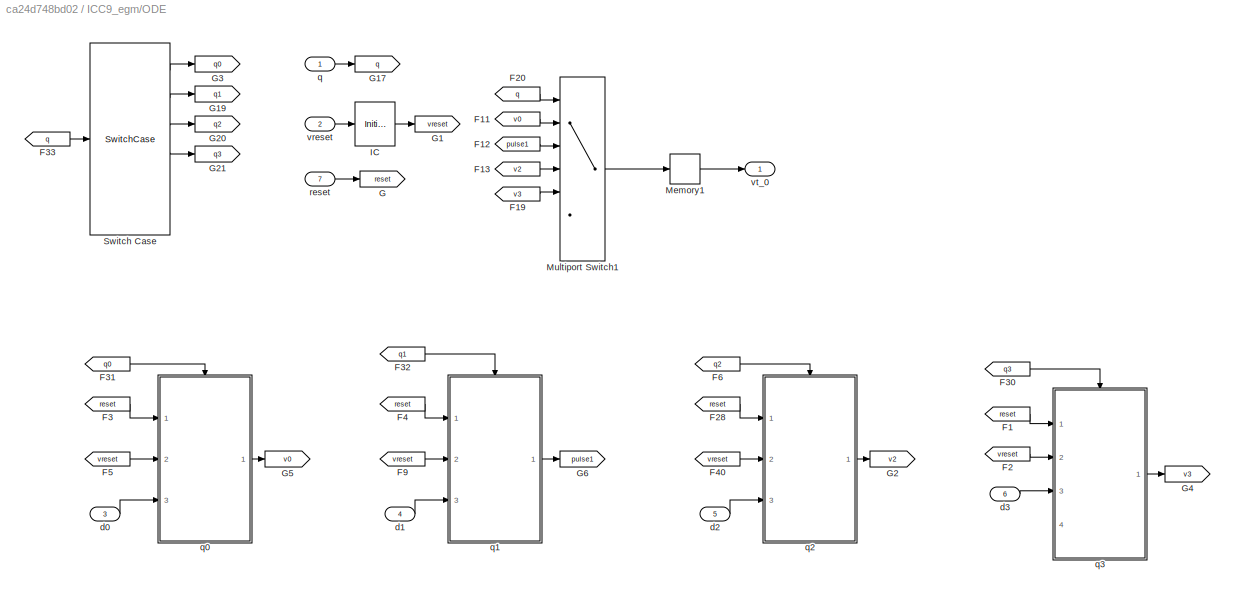
BLOCK [SubSystem] ICC9_egm/ODE
  Ports = [7, 1]
  RequestExecContextInheritance = off
BLOCK [From] ICC9_egm/ODE/F1
  GotoTag = reset
BLOCK [From] ICC9_egm/ODE/F11
  GotoTag = v0
BLOCK [From] ICC9_egm/ODE/F12
  GotoTag = pulse1
BLOCK [From] ICC9_egm/ODE/F13
  GotoTag = v2
BLOCK [From] ICC9_egm/ODE/F19
  GotoTag = v3
BLOCK [From] ICC9_egm/ODE/F2
  GotoTag = vreset
BLOCK [From] ICC9_egm/ODE/F20
  GotoTag = q
BLOCK [From] ICC9_egm/ODE/F28
  GotoTag = reset
BLOCK [From] ICC9_egm/ODE/F3
  GotoTag = reset
BLOCK [From] ICC9_egm/ODE/F30
  GotoTag = q3
BLOCK [From] ICC9_egm/ODE/F31
  GotoTag = q0
BLOCK [From] ICC9_egm/ODE/F32
  GotoTag = q1
BLOCK [From] ICC9_egm/ODE/F33
  GotoTag = q
BLOCK [From] ICC9_egm/ODE/F4
  GotoTag = reset
BLOCK [From] ICC9_egm/ODE/F40
  GotoTag = vreset
BLOCK [From] ICC9_egm/ODE/F5
  GotoTag = vreset
BLOCK [From] ICC9_egm/ODE/F6
  GotoTag = q2
BLOCK [From] ICC9_egm/ODE/F9
  GotoTag = vreset
BLOCK [Goto] ICC9_egm/ODE/G
  GotoTag = reset
BLOCK [Goto] ICC9_egm/ODE/G1
  GotoTag = vreset
BLOCK [Goto] ICC9_egm/ODE/G17
  GotoTag = q
BLOCK [Goto] ICC9_egm/ODE/G19
  GotoTag = q1
BLOCK [Goto] ICC9_egm/ODE/G2
  GotoTag = v2
BLOCK [Goto] ICC9_egm/ODE/G20
  GotoTag = q2
BLOCK [Goto] ICC9_egm/ODE/G21
  GotoTag = q3
BLOCK [Goto] ICC9_egm/ODE/G3
  GotoTag = q0
BLOCK [Goto] ICC9_egm/ODE/G4
  GotoTag = v3
BLOCK [Goto] ICC9_egm/ODE/G5
  GotoTag = v0
BLOCK [Goto] ICC9_egm/ODE/G6
  GotoTag = pulse1
BLOCK [InitialCondition] ICC9_egm/ODE/IC
  Value = 0
BLOCK [Memory] ICC9_egm/ODE/Memory1
BLOCK [MultiPortSwitch] ICC9_egm/ODE/Multiport Switch1
  DataPortOrder = Zero-based contiguous
  InputSameDT = off
  Inputs = 6
  Ports = [7, 1]
  SaturateOnIntegerOverflow = off
  zeroidx = on
BLOCK [SwitchCase] ICC9_egm/ODE/Switch Case
  CaseConditions = {0,1,2,3,4,5}
  Ports = [1, 6]
  ShowDefaultCase = off
BLOCK [Inport] ICC9_egm/ODE/d0
  IconDisplay = Port number
  Port = 3
BLOCK [Inport] ICC9_egm/ODE/d1
  IconDisplay = Port number
  Port = 4
BLOCK [Inport] ICC9_egm/ODE/d2
  IconDisplay = Port number
  Port = 5
BLOCK [Inport] ICC9_egm/ODE/d3
  IconDisplay = Port number
  Port = 6
BLOCK [Inport] ICC9_egm/ODE/q
  IconDisplay = Port number
BLOCK [SubSystem] ICC9_egm/ODE/q0
  Ports = [3, 1, 0, 0, 0, 0, 0, 1]
  RequestExecContextInheritance = off
  TreatAsAtomicUnit = on
BLOCK [ActionPort] ICC9_egm/ODE/q0/Action Port
  ActionType = case
  InitializeStates = reset
BLOCK [Integrator] ICC9_egm/ODE/q0/Integrator1
  ExternalReset = either
  InitialCondition = 20
  InitialConditionSource = external
  Ports = [3, 1]
BLOCK [Inport] ICC9_egm/ODE/q0/d
  IconDisplay = Port number
  Port = 3
BLOCK [Outport] ICC9_egm/ODE/q0/pulse
  IconDisplay = Port number
BLOCK [Inport] ICC9_egm/ODE/q0/reset
  IconDisplay = Port number
BLOCK [Inport] ICC9_egm/ODE/q0/vreset
  IconDisplay = Port number
  Port = 2
BLOCK [SubSystem] ICC9_egm/ODE/q1
  Ports = [3, 1, 0, 0, 0, 0, 0, 1]
  RequestExecContextInheritance = off
  TreatAsAtomicUnit = on
BLOCK [ActionPort] ICC9_egm/ODE/q1/Action Port
  ActionType = case
  InitializeStates = reset
BLOCK [Display] ICC9_egm/ODE/q1/Display
  Decimation = 1
  Ports = [1]
BLOCK [Display] ICC9_egm/ODE/q1/Display1
  Decimation = 1
  Ports = [1]
BLOCK [Integrator] ICC9_egm/ODE/q1/Integrator1
  ExternalReset = either
  InitialCondition = 20
  InitialConditionSource = external
  LimitOutput = on
  Ports = [3, 1]
  UpperSaturationLimit = -24.105
BLOCK [Scope] ICC9_egm/ODE/q1/Scope
  Floating = off
  NumInputPorts = 1
  Ports = [1]
  ScopeSpecificationString = Simulink.scopes.TimeScopeBlockCfg('CurrentConfiguration', extmgr.ConfigurationSet(extmgr.Configuration('Core','General UI',true),extmgr.Configuration('Core','Source UI',true),extmgr.Configuration('Sources','WiredSimulink',true,'DataLoggingVariableName','ScopeData1'),extmgr.Configuration('Visuals','Time Domain',true,'SerializedDisplays',{struct('MinYLimReal','-73.08029','MaxYLimReal','-18.62029','Y...<+1477ch>
BLOCK [Inport] ICC9_egm/ODE/q1/d
  IconDisplay = Port number
  Port = 3
BLOCK [Inport] ICC9_egm/ODE/q1/reset
  IconDisplay = Port number
BLOCK [Outport] ICC9_egm/ODE/q1/v
  IconDisplay = Port number
BLOCK [Inport] ICC9_egm/ODE/q1/vreset
  IconDisplay = Port number
  Port = 2
BLOCK [SubSystem] ICC9_egm/ODE/q2
  Ports = [3, 1, 0, 0, 0, 0, 0, 1]
  RequestExecContextInheritance = off
  TreatAsAtomicUnit = on
BLOCK [ActionPort] ICC9_egm/ODE/q2/Action Port
  ActionType = case
  InitializeStates = reset
BLOCK [Integrator] ICC9_egm/ODE/q2/Integrator1
  ExternalReset = either
  InitialCondition = 20
  InitialConditionSource = external
  Ports = [3, 1]
BLOCK [Inport] ICC9_egm/ODE/q2/d
  IconDisplay = Port number
  Port = 3
BLOCK [Inport] ICC9_egm/ODE/q2/reset
  IconDisplay = Port number
BLOCK [Outport] ICC9_egm/ODE/q2/v
  IconDisplay = Port number
BLOCK [Inport] ICC9_egm/ODE/q2/vreset
  IconDisplay = Port number
  Port = 2
BLOCK [SubSystem] ICC9_egm/ODE/q3
  Ports = [4, 1, 0, 0, 0, 0, 0, 1]
  RequestExecContextInheritance = off
  TreatAsAtomicUnit = on
BLOCK [ActionPort] ICC9_egm/ODE/q3/Action Port
  ActionType = case
  InitializeStates = reset
BLOCK [Constant] ICC9_egm/ODE/q3/C
  Value = -1
BLOCK [Integrator] ICC9_egm/ODE/q3/Integrator1
  ExternalReset = either
  InitialCondition = 20
  InitialConditionSource = external
  LimitOutput = on
  LowerSaturationLimit = -67
  Ports = [3, 1]
BLOCK [Math] ICC9_egm/ODE/q3/Math Function
  Ports = [1, 1]
BLOCK [Product] ICC9_egm/ODE/q3/Product1
  InputSameDT = off
  OutDataTypeStr = Inherit: Inherit via internal rule
  Ports = [2, 1]
  RndMeth = Floor
  SaturateOnIntegerOverflow = off
BLOCK [Product] ICC9_egm/ODE/q3/Product2
  InputSameDT = off
  OutDataTypeStr = Inherit: Inherit via internal rule
  Ports = [2, 1]
  RndMeth = Floor
  SaturateOnIntegerOverflow = off
BLOCK [Inport] ICC9_egm/ODE/q3/d
  IconDisplay = Port number
  Port = 3
BLOCK [Inport] ICC9_egm/ODE/q3/reset
  IconDisplay = Port number
BLOCK [Inport] ICC9_egm/ODE/q3/theta
  IconDisplay = Port number
  Port = 4
BLOCK [Outport] ICC9_egm/ODE/q3/v
  IconDisplay = Port number
BLOCK [Inport] ICC9_egm/ODE/q3/vreset
  IconDisplay = Port number
  Port = 2
BLOCK [Inport] ICC9_egm/ODE/reset
  IconDisplay = Port number
  Port = 7
BLOCK [Inport] ICC9_egm/ODE/vreset
  IconDisplay = Port number
  Port = 2
BLOCK [Outport] ICC9_egm/ODE/vt_0
  IconDisplay = Port number
BLOCK [Outport] ICC9_egm/Output
  IconDisplay = Port number
  Port = 3
BLOCK [Sum] ICC9_egm/Sum
  IconShape = round
  InputSameDT = off
  Inputs = |++
  OutDataTypeStr = Inherit: Inherit via internal rule
  Ports = [2, 1]
  SaturateOnIntegerOverflow = off
BLOCK [Inport] ICC9_egm/cfg 
  IconDisplay = Port number
BLOCK [Inport] ICC9_egm/gv1
  IconDisplay = Port number
  Port = 2
BLOCK [Inport] ICC9_egm/gv2
  IconDisplay = Port number
  Port = 3
BLOCK [Inport] ICC9_egm/pulse
  IconDisplay = Port number
  Port = 4
BLOCK [Outport] ICC9_egm/q
  IconDisplay = Port number
  Port = 2
BLOCK [Outport] ICC9_egm/v
  IconDisplay = Port number
BLOCK [Inport] ICC9_egm/vin
  IconDisplay = Port number
  Port = 5
BLOCK [Outport] ICC9_egm/xy
  IconDisplay = Port number
  Port = 4
BLOCK [Scope] Scope
  Floating = off
  IOType = viewer
  NumInputPorts = 1
  Ports = []
  ScopeSpecificationString = Simulink.scopes.TimeScopeBlockCfg('CurrentConfiguration', extmgr.ConfigurationSet(extmgr.Configuration('Core','General UI',true),extmgr.Configuration('Core','Source UI',true),extmgr.Configuration('Sources','WiredSimulink',true),extmgr.Configuration('Visuals','Time Domain',true,'SerializedDisplays',{struct('MinYLimReal','-76.09194','MaxYLimReal','8.48791','YLabelReal','','MinYLimMag','0.00000','Max...<+3221ch>
BLOCK [Scope] Scope1
  Floating = off
  IOType = viewer
  NumInputPorts = 1
  Ports = []
  ScopeSpecificationString = Simulink.scopes.TimeScopeBlockCfg('CurrentConfiguration', extmgr.ConfigurationSet(extmgr.Configuration('Core','General UI',true),extmgr.Configuration('Core','Source UI',true),extmgr.Configuration('Sources','WiredSimulink',true,'DataLoggingVariableName','ScopeData1'),extmgr.Configuration('Visuals','Time Domain',true,'SerializedDisplays',{struct('MinYLimReal','-19.51811','MaxYLimReal','16.48229','YL...<+1878ch>
BLOCK [SubSystem] Subsystem2
  AncestorBlock = Pacemaker/Subsystem
  Ports = [1, 1]
  RequestExecContextInheritance = off
BLOCK [SubSystem] Subsystem2/Chart
  ErrorFcn = Stateflow.Translate.translate
  PermitHierarchicalResolution = ExplicitOnly
  Ports = [1, 1]
  RequestExecContextInheritance = off
  SFBlockType = Chart
  TreatAsAtomicUnit = on
BLOCK [Demux] Subsystem2/Chart/ Demux 
  Outputs = 1
  Ports = [1, 1]
BLOCK [S-Function] Subsystem2/Chart/ SFunction 
  EnableBusSupport = on
  FunctionName = sf_sfun
  PortCounts = [1 2]
  Ports = [1, 2]
  SFcnIsStateOwnerBlock = off
  SFunctionDeploymentMode = off
  Tag = Stateflow S-Function ICCNetwork9_2_nf_EGM3_p1 12
BLOCK [Terminator] Subsystem2/Chart/ Terminator 
BLOCK [Inport] Subsystem2/Chart/Sense
  IconDisplay = Port number
BLOCK [Outport] Subsystem2/Chart/pace
  IconDisplay = Port number
BLOCK [Inport] Subsystem2/Sense
  IconDisplay = Port number
BLOCK [Outport] Subsystem2/pace
  IconDisplay = Port number
BLOCK [ToWorkspace] To Workspace
  FixptAsFi = on
  MaxDataPoints = inf
  Ports = [1]
  SampleTime = -1
  Save2DSignal = 3-D array (concatenate along third dimension)
  SaveFormat = Timeseries
  VariableName = pace1
BLOCK [ToWorkspace] To Workspace1
  FixptAsFi = on
  MaxDataPoints = inf
  Ports = [1]
  SampleTime = -1
  Save2DSignal = 3-D array (concatenate along third dimension)
  SaveFormat = Timeseries
  VariableName = tgv2
BLOCK [ToWorkspace] To Workspace10
  FixptAsFi = on
  MaxDataPoints = inf
  Ports = [1]
  SampleTime = -1
  Save2DSignal = 3-D array (concatenate along third dimension)
  SaveFormat = Timeseries
  VariableName = egm4_5
BLOCK [ToWorkspace] To Workspace11
  FixptAsFi = on
  MaxDataPoints = inf
  Ports = [1]
  SampleTime = -1
  Save2DSignal = 3-D array (concatenate along third dimension)
  SaveFormat = Timeseries
  VariableName = egm5_6
BLOCK [ToWorkspace] To Workspace12
  FixptAsFi = on
  MaxDataPoints = inf
  Ports = [1]
  SampleTime = -1
  Save2DSignal = 3-D array (concatenate along third dimension)
  SaveFormat = Timeseries
  VariableName = egm5_8
BLOCK [ToWorkspace] To Workspace13
  FixptAsFi = on
  MaxDataPoints = inf
  Ports = [1]
  SampleTime = -1
  Save2DSignal = 3-D array (concatenate along third dimension)
  SaveFormat = Timeseries
  VariableName = egm6_9
BLOCK [ToWorkspace] To Workspace14
  FixptAsFi = on
  MaxDataPoints = inf
  Ports = [1]
  SampleTime = -1
  Save2DSignal = 3-D array (concatenate along third dimension)
  SaveFormat = Timeseries
  VariableName = egm7_8
BLOCK [ToWorkspace] To Workspace15
  FixptAsFi = on
  MaxDataPoints = inf
  Ports = [1]
  SampleTime = -1
  Save2DSignal = 3-D array (concatenate along third dimension)
  SaveFormat = Timeseries
  VariableName = egm8_9
BLOCK [ToWorkspace] To Workspace16
  FixptAsFi = on
  MaxDataPoints = inf
  Ports = [1]
  SampleTime = -1
  Save2DSignal = 3-D array (concatenate along third dimension)
  SaveFormat = Timeseries
  VariableName = egm1_2
BLOCK [ToWorkspace] To Workspace17
  FixptAsFi = on
  MaxDataPoints = inf
  Ports = [1]
  SampleTime = -1
  Save2DSignal = 3-D array (concatenate along third dimension)
  SaveFormat = Timeseries
  VariableName = egm1_4
BLOCK [ToWorkspace] To Workspace18
  FixptAsFi = on
  MaxDataPoints = inf
  Ports = [1]
  SampleTime = -1
  Save2DSignal = 3-D array (concatenate along third dimension)
  SaveFormat = Timeseries
  VariableName = egm2_3
BLOCK [ToWorkspace] To Workspace189
  FixptAsFi = on
  MaxDataPoints = inf
  Ports = [1]
  SampleTime = -1
  Save2DSignal = 3-D array (concatenate along third dimension)
  SaveFormat = Timeseries
  VariableName = q7
BLOCK [ToWorkspace] To Workspace19
  FixptAsFi = on
  MaxDataPoints = inf
  Ports = [1]
  SampleTime = -1
  Save2DSignal = 3-D array (concatenate along third dimension)
  SaveFormat = Timeseries
  VariableName = egm2_5
BLOCK [ToWorkspace] To Workspace190
  FixptAsFi = on
  MaxDataPoints = inf
  Ports = [1]
  SampleTime = -1
  Save2DSignal = 3-D array (concatenate along third dimension)
  SaveFormat = Timeseries
  VariableName = tgv7
BLOCK [ToWorkspace] To Workspace191
  FixptAsFi = on
  MaxDataPoints = inf
  Ports = [1]
  SampleTime = -1
  Save2DSignal = 3-D array (concatenate along third dimension)
  SaveFormat = Timeseries
  VariableName = q8
BLOCK [ToWorkspace] To Workspace192
  FixptAsFi = on
  MaxDataPoints = inf
  Ports = [1]
  SampleTime = -1
  Save2DSignal = 3-D array (concatenate along third dimension)
  SaveFormat = Timeseries
  VariableName = tgv8
BLOCK [ToWorkspace] To Workspace2
  FixptAsFi = on
  MaxDataPoints = inf
  Ports = [1]
  SampleTime = -1
  Save2DSignal = 3-D array (concatenate along third dimension)
  SaveFormat = Timeseries
  VariableName = gv1
BLOCK [ToWorkspace] To Workspace20
  FixptAsFi = on
  MaxDataPoints = inf
  Ports = [1]
  SampleTime = -1
  Save2DSignal = 3-D array (concatenate along third dimension)
  SaveFormat = Timeseries
  VariableName = egm3_6
BLOCK [ToWorkspace] To Workspace207
  FixptAsFi = on
  MaxDataPoints = inf
  Ports = [1]
  SampleTime = -1
  Save2DSignal = 3-D array (concatenate along third dimension)
  SaveFormat = Timeseries
  VariableName = q9
BLOCK [ToWorkspace] To Workspace208
  FixptAsFi = on
  MaxDataPoints = inf
  Ports = [1]
  SampleTime = -1
  Save2DSignal = 3-D array (concatenate along third dimension)
  SaveFormat = Timeseries
  VariableName = tgv9
BLOCK [ToWorkspace] To Workspace21
  FixptAsFi = on
  MaxDataPoints = inf
  Ports = [1]
  SampleTime = -1
  Save2DSignal = 3-D array (concatenate along third dimension)
  SaveFormat = Timeseries
  VariableName = egm_sum
BLOCK [ToWorkspace] To Workspace22
  FixptAsFi = on
  MaxDataPoints = inf
  Ports = [1]
  SampleTime = -1
  Save2DSignal = 3-D array (concatenate along third dimension)
  SaveFormat = Timeseries
  VariableName = egm_c1
BLOCK [ToWorkspace] To Workspace23
  FixptAsFi = on
  MaxDataPoints = inf
  Ports = [1]
  SampleTime = -1
  Save2DSignal = 3-D array (concatenate along third dimension)
  SaveFormat = Timeseries
  VariableName = tgv3
BLOCK [ToWorkspace] To Workspace24
  FixptAsFi = on
  MaxDataPoints = inf
  Ports = [1]
  SampleTime = -1
  Save2DSignal = 3-D array (concatenate along third dimension)
  SaveFormat = Timeseries
  VariableName = egm_c2
BLOCK [ToWorkspace] To Workspace25
  FixptAsFi = on
  MaxDataPoints = inf
  Ports = [1]
  SampleTime = -1
  Save2DSignal = 3-D array (concatenate along third dimension)
  SaveFormat = Timeseries
  VariableName = q3
BLOCK [ToWorkspace] To Workspace26
  FixptAsFi = on
  MaxDataPoints = inf
  Ports = [1]
  SampleTime = -1
  Save2DSignal = 3-D array (concatenate along third dimension)
  SaveFormat = Timeseries
  VariableName = egm_c3
BLOCK [ToWorkspace] To Workspace27
  FixptAsFi = on
  MaxDataPoints = inf
  Ports = [1]
  SampleTime = -1
  Save2DSignal = 3-D array (concatenate along third dimension)
  SaveFormat = Timeseries
  VariableName = egm_c4
BLOCK [ToWorkspace] To Workspace28
  FixptAsFi = on
  MaxDataPoints = inf
  Ports = [1]
  SampleTime = -1
  Save2DSignal = 3-D array (concatenate along third dimension)
  SaveFormat = Timeseries
  VariableName = egm_c5
BLOCK [ToWorkspace] To Workspace29
  FixptAsFi = on
  MaxDataPoints = inf
  Ports = [1]
  SampleTime = -1
  Save2DSignal = 3-D array (concatenate along third dimension)
  SaveFormat = Timeseries
  VariableName = q4
BLOCK [ToWorkspace] To Workspace3
  FixptAsFi = on
  MaxDataPoints = inf
  Ports = [1]
  SampleTime = -1
  Save2DSignal = 3-D array (concatenate along third dimension)
  SaveFormat = Timeseries
  VariableName = tgv
BLOCK [ToWorkspace] To Workspace30
  FixptAsFi = on
  MaxDataPoints = inf
  Ports = [1]
  SampleTime = -1
  Save2DSignal = 3-D array (concatenate along third dimension)
  SaveFormat = Timeseries
  VariableName = tgv4
BLOCK [ToWorkspace] To Workspace31
  FixptAsFi = on
  MaxDataPoints = inf
  Ports = [1]
  SampleTime = -1
  Save2DSignal = 3-D array (concatenate along third dimension)
  SaveFormat = Timeseries
  VariableName = q5
BLOCK [ToWorkspace] To Workspace32
  FixptAsFi = on
  MaxDataPoints = inf
  Ports = [1]
  SampleTime = -1
  Save2DSignal = 3-D array (concatenate along third dimension)
  SaveFormat = Timeseries
  VariableName = tgv5
BLOCK [ToWorkspace] To Workspace33
  FixptAsFi = on
  MaxDataPoints = inf
  Ports = [1]
  SampleTime = -1
  Save2DSignal = 3-D array (concatenate along third dimension)
  SaveFormat = Timeseries
  VariableName = egm_c6
BLOCK [ToWorkspace] To Workspace34
  FixptAsFi = on
  MaxDataPoints = inf
  Ports = [1]
  SampleTime = -1
  Save2DSignal = 3-D array (concatenate along third dimension)
  SaveFormat = Timeseries
  VariableName = egm_c7
BLOCK [ToWorkspace] To Workspace35
  FixptAsFi = on
  MaxDataPoints = inf
  Ports = [1]
  SampleTime = -1
  Save2DSignal = 3-D array (concatenate along third dimension)
  SaveFormat = Timeseries
  VariableName = egm_c8
BLOCK [ToWorkspace] To Workspace36
  FixptAsFi = on
  MaxDataPoints = inf
  Ports = [1]
  SampleTime = -1
  Save2DSignal = 3-D array (concatenate along third dimension)
  SaveFormat = Timeseries
  VariableName = egm_c9
BLOCK [ToWorkspace] To Workspace37
  FixptAsFi = on
  MaxDataPoints = inf
  Ports = [1]
  SampleTime = -1
  Save2DSignal = 3-D array (concatenate along third dimension)
  SaveFormat = Timeseries
  VariableName = paceT
BLOCK [ToWorkspace] To Workspace38
  FixptAsFi = on
  MaxDataPoints = inf
  Ports = [1]
  SampleTime = -1
  Save2DSignal = 3-D array (concatenate along third dimension)
  SaveFormat = Timeseries
  VariableName = paceAdj1
BLOCK [ToWorkspace] To Workspace4
  FixptAsFi = on
  MaxDataPoints = inf
  Ports = [1]
  SampleTime = -1
  Save2DSignal = 3-D array (concatenate along third dimension)
  SaveFormat = Timeseries
  VariableName = relay1
BLOCK [ToWorkspace] To Workspace47
  FixptAsFi = on
  MaxDataPoints = inf
  Ports = [1]
  SampleTime = -1
  Save2DSignal = 3-D array (concatenate along third dimension)
  SaveFormat = Timeseries
  VariableName = q6
BLOCK [ToWorkspace] To Workspace48
  FixptAsFi = on
  MaxDataPoints = inf
  Ports = [1]
  SampleTime = -1
  Save2DSignal = 3-D array (concatenate along third dimension)
  SaveFormat = Timeseries
  VariableName = tgv6
BLOCK [ToWorkspace] To Workspace5
  FixptAsFi = on
  MaxDataPoints = inf
  Ports = [1]
  SampleTime = -1
  Save2DSignal = 3-D array (concatenate along third dimension)
  SaveFormat = Timeseries
  VariableName = gv
BLOCK [ToWorkspace] To Workspace6
  FixptAsFi = on
  MaxDataPoints = inf
  Ports = [1]
  SampleTime = -1
  Save2DSignal = 3-D array (concatenate along third dimension)
  SaveFormat = Timeseries
  VariableName = q2
BLOCK [ToWorkspace] To Workspace7
  FixptAsFi = on
  MaxDataPoints = inf
  Ports = [1]
  SampleTime = -1
  Save2DSignal = 3-D array (concatenate along third dimension)
  SaveFormat = Timeseries
  VariableName = q
BLOCK [ToWorkspace] To Workspace8
  FixptAsFi = on
  MaxDataPoints = inf
  Ports = [1]
  SampleTime = -1
  Save2DSignal = 3-D array (concatenate along third dimension)
  SaveFormat = Timeseries
  VariableName = egm4_7
BLOCK [ToWorkspace] To Workspace9
  FixptAsFi = on
  MaxDataPoints = inf
  Ports = [1]
  SampleTime = -1
  Save2DSignal = 3-D array (concatenate along third dimension)
  SaveFormat = Timeseries
  VariableName = relay
BLOCK [UnitDelay] Unit Delay1
  InputProcessing = Elements as channels (sample based)
  SampleTime = -1
BLOCK [UnitDelay] Unit Delay2
  InputProcessing = Elements as channels (sample based)
  SampleTime = -1
BLOCK [Reference] cfg  REF=icc_lib_avg_path1_n1/cfg  (lib defined in slx_1f48d7527c07)
  Ports = [3, 1]
  SourceBlock = icc_lib_avg_path1_n1/cfg
  SourceType = SubSystem
BLOCK [Reference] cfg1  REF=icc_lib_avg_path1_n1/cfg  (lib defined in slx_1f48d7527c07)
  Ports = [3, 1]
  SourceBlock = icc_lib_avg_path1_n1/cfg
  SourceType = SubSystem
BLOCK [Reference] cfg2  REF=icc_lib_avg_path1_n1/cfg  (lib defined in slx_1f48d7527c07)
  Ports = [3, 1]
  SourceBlock = icc_lib_avg_path1_n1/cfg
  SourceType = SubSystem
BLOCK [Reference] cfg3  REF=icc_lib_avg_path1_n1/cfg  (lib defined in slx_1f48d7527c07)
  Ports = [3, 1]
  SourceBlock = icc_lib_avg_path1_n1/cfg
  SourceType = SubSystem
BLOCK [Reference] cfg4  REF=icc_lib_avg_path1_n1/cfg  (lib defined in slx_1f48d7527c07)
  Ports = [3, 1]
  SourceBlock = icc_lib_avg_path1_n1/cfg
  SourceType = SubSystem
BLOCK [Reference] cfg5  REF=icc_lib_avg_path1_n1/cfg  (lib defined in slx_1f48d7527c07)
  Ports = [3, 1]
  SourceBlock = icc_lib_avg_path1_n1/cfg
  SourceType = SubSystem
BLOCK [Reference] cfg6  REF=icc_lib_avg_path1_n1/cfg  (lib defined in slx_1f48d7527c07)
  Ports = [3, 1]
  SourceBlock = icc_lib_avg_path1_n1/cfg
  SourceType = SubSystem
BLOCK [Reference] cfg7  REF=icc_lib_avg_path1_n1/cfg  (lib defined in slx_1f48d7527c07)
  Ports = [3, 1]
  SourceBlock = icc_lib_avg_path1_n1/cfg
  SourceType = SubSystem
BLOCK [Reference] cfg8  REF=icc_lib_avg_path1_n1/cfg  (lib defined in slx_1f48d7527c07)
  Ports = [3, 1]
  SourceBlock = icc_lib_avg_path1_n1/cfg
  SourceType = SubSystem
BLOCK [Reference] egm_pace1  REF=icc_lib_avg_path1_n1/egm_pace1  (lib defined in slx_1f48d7527c07)
  Ports = [4, 3]
  SourceBlock = icc_lib_avg_path1_n1/egm_pace1
  SourceType = SubSystem
BLOCK [Reference] path_EGM1-2  REF=icc_lib_avg_path1_n1/path_EGM  (lib defined in slx_1f48d7527c07)
  Ports = [6, 3]
  SourceBlock = icc_lib_avg_path1_n1/path_EGM
  SourceType = SubSystem
BLOCK [Reference] path_EGM1-4  REF=icc_lib_avg_path1_n1/path_EGM  (lib defined in slx_1f48d7527c07)
  Ports = [6, 3]
  SourceBlock = icc_lib_avg_path1_n1/path_EGM
  SourceType = SubSystem
BLOCK [Reference] path_EGM2-3  REF=icc_lib_avg_path1_n1/path_EGM  (lib defined in slx_1f48d7527c07)
  Ports = [6, 3]
  SourceBlock = icc_lib_avg_path1_n1/path_EGM
  SourceType = SubSystem
BLOCK [Reference] path_EGM2-5  REF=icc_lib_avg_path1_n1/path_EGM  (lib defined in slx_1f48d7527c07)
  Ports = [6, 3]
  SourceBlock = icc_lib_avg_path1_n1/path_EGM
  SourceType = SubSystem
BLOCK [Reference] path_EGM3-6  REF=icc_lib_avg_path1_n1/path_EGM  (lib defined in slx_1f48d7527c07)
  Ports = [6, 3]
  SourceBlock = icc_lib_avg_path1_n1/path_EGM
  SourceType = SubSystem
BLOCK [Reference] path_EGM4-5  REF=icc_lib_avg_path1_n1/path_EGM  (lib defined in slx_1f48d7527c07)
  Ports = [6, 3]
  SourceBlock = icc_lib_avg_path1_n1/path_EGM
  SourceType = SubSystem
BLOCK [Reference] path_EGM4-7  REF=icc_lib_avg_path1_n1/path_EGM  (lib defined in slx_1f48d7527c07)
  Ports = [6, 3]
  SourceBlock = icc_lib_avg_path1_n1/path_EGM
  SourceType = SubSystem
BLOCK [Reference] path_EGM5-6  REF=icc_lib_avg_path1_n1/path_EGM  (lib defined in slx_1f48d7527c07)
  Ports = [6, 3]
  SourceBlock = icc_lib_avg_path1_n1/path_EGM
  SourceType = SubSystem
BLOCK [Reference] path_EGM5-8  REF=icc_lib_avg_path1_n1/path_EGM  (lib defined in slx_1f48d7527c07)
  Ports = [6, 3]
  SourceBlock = icc_lib_avg_path1_n1/path_EGM
  SourceType = SubSystem
BLOCK [Reference] path_EGM6-9  REF=icc_lib_avg_path1_n1/path_EGM  (lib defined in slx_1f48d7527c07)
  Ports = [6, 3]
  SourceBlock = icc_lib_avg_path1_n1/path_EGM
  SourceType = SubSystem
BLOCK [Reference] path_EGM7-8  REF=icc_lib_avg_path1_n1/path_EGM  (lib defined in slx_1f48d7527c07)
  Ports = [6, 3]
  SourceBlock = icc_lib_avg_path1_n1/path_EGM
  SourceType = SubSystem
BLOCK [Reference] path_EGM8-9  REF=icc_lib_avg_path1_n1/path_EGM  (lib defined in slx_1f48d7527c07)
  Ports = [6, 3]
  SourceBlock = icc_lib_avg_path1_n1/path_EGM
  SourceType = SubSystem
LINE Add2:1 -> To Workspace38:1
LINE Add:1 -> To Workspace:1
LINE Clock1:1 -> egm_pace1:1
LINE Constant10:1 -> ICC3_egm1:4
LINE Constant11:1 -> cfg2:3
LINE Constant12:1 -> cfg2:2
LINE Constant13:1 -> Add2:1
LINE Constant15:1 -> cfg5:3
LINE Constant16:1 -> cfg5:2
LINE Constant17:1 -> cfg4:3
LINE Constant181:1 -> cfg8:1
LINE Constant182:1 -> ICC8_egm:5
LINE Constant183:1 -> ICC9_egm:4
LINE Constant18:1 -> cfg4:2
LINE Constant193:1 -> ICC7_egm:4
LINE Constant196:1 -> cfg6:1
LINE Constant198:1 -> cfg7:1
LINE Constant19:1 -> cfg3:3
LINE Constant1:1 -> ICC2_egm:5
LINE Constant202:1 -> Add:2
LINE Constant20:1 -> cfg3:2
LINE Constant21:1 -> cfg8:3
LINE Constant22:1 -> cfg2:1
LINE Constant23:1 -> cfg3:1
LINE Constant24:1 -> cfg4:1
LINE Constant25:1 -> ICC5_egm:6
LINE Constant26:1 -> cfg8:2
LINE Constant27:1 -> cfg7:3
LINE Constant28:1 -> cfg7:2
LINE Constant29:1 -> cfg6:3
LINE Constant30:1 -> cfg6:2
LINE Constant3:1 -> ICC4_egm:5
LINE Constant40:1 -> cfg5:1
LINE Constant4:1 -> ICC6_egm:5
LINE Constant5:1 -> cfg:3
LINE Constant6:1 -> cfg1:1
LINE Constant7:1 -> cfg:2
LINE Constant8:1 -> cfg1:3
LINE Constant9:1 -> cfg1:2
LINE Constant:1 -> cfg:1
NET EGM1-2:1 -> G33:1, To Workspace16:1
NET EGM1-4:1 -> G34:1, To Workspace17:1
LINE EGM10:1 -> EGM_out4:3
LINE EGM11:1 -> EGM_out4:1
LINE EGM12:1 -> EGM_out:1
LINE EGM13:1 -> EGM_out:10
LINE EGM14:1 -> EGM_out:11
LINE EGM15:1 -> EGM_out:12
LINE EGM16:1 -> EGM_out6:2
LINE EGM17:1 -> EGM_out5:2
LINE EGM18:1 -> EGM_out5:3
LINE EGM19:1 -> EGM_out6:3
LINE EGM1:1 -> EGM_out1:1
NET EGM2-3:1 -> G35:1, To Workspace18:1
NET EGM2-5:1 -> G39:1, To Workspace19:1
LINE EGM20:1 -> EGM_out6:1
LINE EGM21:1 -> EGM_out7:1
LINE EGM22:1 -> EGM_out8:1
LINE EGM23:1 -> EGM_out:2
LINE EGM24:1 -> EGM_out9:1
LINE EGM25:1 -> EGM_out9:2
LINE EGM26:1 -> EGM_out7:2
LINE EGM27:1 -> EGM_out8:2
LINE EGM28:1 -> EGM_out8:3
LINE EGM29:1 -> EGM_out5:4
LINE EGM2:1 -> EGM_out2:1
NET EGM3-6:1 -> G47:1, To Workspace20:1
LINE EGM34:1 -> EGM_out:3
LINE EGM3:1 -> EGM_out3:1
NET EGM4-5:1 -> G40:1, To Workspace10:1
NET EGM4-7:1 -> G41:1, To Workspace8:1
LINE EGM45:1 -> EGM_out:4
LINE EGM4:1 -> EGM_out3:2
NET EGM5-6:1 -> G42:1, To Workspace11:1
NET EGM5-8:1 -> G43:1, To Workspace12:1
LINE EGM56:1 -> EGM_out:5
LINE EGM5:1 -> EGM_out1:2
NET EGM6-9:1 -> G49:1, To Workspace13:1
LINE EGM62:1 -> EGM_out:6
LINE EGM63:1 -> EGM_out:7
LINE EGM64:1 -> EGM_out:8
LINE EGM65:1 -> EGM_out:9
LINE EGM6:1 -> EGM_out4:2
NET EGM7-8:1 -> G44:1, To Workspace14:1
LINE EGM7:1 -> EGM_out5:1
NET EGM8-9:1 -> G45:1, To Workspace15:1
LINE EGM8:1 -> EGM_out2:2
LINE EGM9:1 -> EGM_out2:3
NET EGM_out1:1 -> EGMs_out1:1, To Workspace22:1
NET EGM_out2:1 -> EGMs_out2:1, To Workspace24:1
NET EGM_out3:1 -> EGMs_out3:1, To Workspace26:1
NET EGM_out4:1 -> EGMs_out4:1, To Workspace27:1
NET EGM_out5:1 -> EGMs_out5:1, To Workspace28:1
NET EGM_out6:1 -> EGMs_out6:1, To Workspace33:1
NET EGM_out7:1 -> EGMs_out7:1, To Workspace34:1
NET EGM_out8:1 -> EGMs_out8:1, To Workspace35:1
NET EGM_out9:1 -> EGMs_out9:1, To Workspace36:1
NET EGM_out:1 -> EGMs_out:1, G50:1, To Workspace21:1
LINE From10:1 -> path_EGM1-2:6
LINE From1113:1 -> ICC8_egm:2
LINE From1143:1 -> ICC8_egm:3
LINE From1148:1 -> path_EGM8-9:1
LINE From1150:1 -> path_EGM8-9:4
LINE From1151:1 -> path_EGM8-9:3
LINE From1152:1 -> path_EGM8-9:2
LINE From1153:1 -> ICC7_egm:2
LINE From1179:1 -> ICC7_egm:3
LINE From1181:1 -> path_EGM7-8:1
LINE From1187:1 -> path_EGM7-8:4
LINE From1188:1 -> ICC9_egm:2
LINE From1189:1 -> ICC9_egm:3
LINE From1190:1 -> ICC9_egm:5
LINE From1191:1 -> path_EGM7-8:3
LINE From1194:1 -> ICC7_egm:5
LINE From1199:1 -> ICC8_egm:4
LINE From11:1 -> path_EGM1-4:1
LINE From1202:1 -> ICC8_egm:6
LINE From1209:1 -> path_EGM7-8:2
LINE From128:1 -> ICC4_egm:2
LINE From129:1 -> ICC6_egm:6
LINE From12:1 -> path_EGM1-4:5
LINE From130:1 -> path_EGM4-5:4
LINE From131:1 -> path_EGM3-6:1
LINE From132:1 -> path_EGM3-6:4
LINE From133:1 -> path_EGM3-6:3
LINE From134:1 -> path_EGM3-6:2
LINE From135:1 -> path_EGM4-5:3
LINE From136:1 -> path_EGM4-5:2
LINE From137:1 -> path_EGM4-7:1
LINE From138:1 -> path_EGM4-7:4
LINE From139:1 -> path_EGM4-7:3
LINE From13:1 -> ICC2_egm:3
LINE From140:1 -> path_EGM4-7:2
LINE From141:1 -> path_EGM4-5:1
LINE From142:1 -> path_EGM5-6:4
LINE From143:1 -> path_EGM5-6:3
LINE From144:1 -> path_EGM5-6:2
LINE From145:1 -> path_EGM5-8:1
LINE From146:1 -> path_EGM5-8:4
LINE From147:1 -> path_EGM5-8:3
LINE From148:1 -> path_EGM5-8:2
LINE From149:1 -> path_EGM5-6:1
LINE From14:1 -> path_EGM2-3:1
LINE From15:1 -> path_EGM1-4:4
LINE From16:1 -> path_EGM2-3:4
LINE From17:1 -> path_EGM2-3:3
LINE From18:1 -> path_EGM2-3:2
LINE From19:1 -> path_EGM1-4:6
NET From1:1 -> ICC2_egm:2, To Workspace2:1
LINE From209:1 -> path_EGM6-9:1
LINE From20:1 -> path_EGM2-3:6
LINE From210:1 -> path_EGM6-9:4
LINE From211:1 -> path_EGM6-9:3
LINE From212:1 -> path_EGM6-9:2
LINE From21:1 -> path_EGM2-3:5
LINE From22:1 -> path_EGM2-5:6
LINE From231:1 -> ICC4_egm:3
LINE From232:1 -> ICC4_egm:4
LINE From233:1 -> ICC4_egm:6
LINE From234:1 -> ICC5_egm:3
LINE From235:1 -> ICC5_egm:4
LINE From236:1 -> ICC5_egm:5
LINE From237:1 -> ICC5_egm:7
LINE From238:1 -> ICC5_egm:2
LINE From23:1 -> path_EGM2-5:5
LINE From24:1 -> path_EGM3-6:6
LINE From25:1 -> path_EGM3-6:5
LINE From26:1 -> path_EGM6-9:6
LINE From274:1 -> ICC6_egm:3
LINE From275:1 -> ICC6_egm:4
LINE From276:1 -> ICC6_egm:2
LINE From27:1 -> path_EGM6-9:5
LINE From28:1 -> path_EGM5-8:6
LINE From29:1 -> path_EGM5-8:5
NET From2:1 -> ICC1_egm:2, To Workspace5:1
LINE From30:1 -> path_EGM5-6:6
LINE From31:1 -> path_EGM5-6:5
LINE From32:1 -> path_EGM4-5:6
LINE From33:1 -> path_EGM4-5:5
LINE From34:1 -> path_EGM4-7:6
LINE From35:1 -> path_EGM4-7:5
LINE From36:1 -> path_EGM8-9:6
LINE From37:1 -> path_EGM8-9:5
LINE From38:1 -> path_EGM7-8:6
LINE From39:1 -> path_EGM7-8:5
LINE From3:1 -> ICC1_egm:3
LINE From40:1 -> EGM1-2:1
LINE From41:1 -> EGM1-4:1
LINE From42:1 -> EGM2-3:1
LINE From43:1 -> EGM2-5:1
LINE From44:1 -> EGM4-5:1
LINE From45:1 -> EGM4-7:1
LINE From46:1 -> EGM5-6:1
LINE From47:1 -> EGM5-8:1
LINE From48:1 -> EGM7-8:1
LINE From49:1 -> EGM8-9:1
LINE From4:1 -> path_EGM1-2:1
LINE From50:1 -> EGM3-6:1
LINE From51:1 -> EGM6-9:1
LINE From52:1 -> egm_pace1:2
LINE From53:1 -> ICC1_egm:4
LINE From57:1 -> ICC3_egm1:2
LINE From58:1 -> ICC3_egm1:3
LINE From59:1 -> ICC3_egm1:5
LINE From5:1 -> path_EGM1-2:4
LINE From60:1 -> path_EGM1-4:3
LINE From61:1 -> path_EGM1-4:2
LINE From62:1 -> ICC1_egm:5
LINE From63:1 -> path_EGM2-5:1
LINE From64:1 -> path_EGM2-5:4
LINE From65:1 -> path_EGM2-5:3
LINE From66:1 -> path_EGM2-5:2
LINE From67:1 -> ICC2_egm:4
LINE From6:1 -> path_EGM1-2:3
LINE From7:1 -> ICC2_egm:6
LINE From85:1 -> Subsystem2:1
LINE From8:1 -> path_EGM1-2:2
LINE From9:1 -> path_EGM1-2:5
NET ICC1_egm:1 -> G2:1, To Workspace3:1
NET ICC1_egm:2 -> G1:1, To Workspace7:1
LINE ICC1_egm:3 -> G48:1
LINE ICC1_egm:4 -> G11:1
NET ICC2_egm:1 -> G8:1, To Workspace1:1
NET ICC2_egm:2 -> G3:1, To Workspace6:1
LINE ICC2_egm:3 -> G655:1
LINE ICC2_egm:4 -> G12:1
NET ICC3_egm1:1 -> G36:1, To Workspace23:1
NET ICC3_egm1:2 -> G16:1, To Workspace25:1
LINE ICC3_egm1:3 -> G654:1
LINE ICC3_egm1:4 -> G13:1
NET ICC4_egm:1 -> G130:1, To Workspace30:1
NET ICC4_egm:2 -> G129:1, To Workspace29:1
LINE ICC4_egm:3 -> G131:1
LINE ICC4_egm:4 -> G20:1
NET ICC5_egm:1 -> G133:1, To Workspace32:1
NET ICC5_egm:2 -> G132:1, To Workspace31:1
LINE ICC5_egm:3 -> G134:1
LINE ICC5_egm:4 -> G19:1
NET ICC6_egm:1 -> G157:1, To Workspace48:1
NET ICC6_egm:2 -> G156:1, To Workspace47:1
LINE ICC6_egm:3 -> G158:1
LINE ICC6_egm:4 -> G18:1
NET ICC7_egm:1 -> G621:1, To Workspace190:1
NET ICC7_egm:2 -> G619:1, To Workspace189:1
LINE ICC7_egm:3 -> G622:1
LINE ICC7_egm:4 -> G17:1
NET ICC8_egm:1 -> G625:1, To Workspace192:1
NET ICC8_egm:2 -> G623:1, To Workspace191:1
LINE ICC8_egm:3 -> G107:1
LINE ICC8_egm:4 -> G15:1
NET ICC9_egm:1 -> G651:1, To Workspace208:1
NET ICC9_egm:2 -> G650:1, To Workspace207:1
LINE ICC9_egm:3 -> G653:1
LINE ICC9_egm:4 -> G14:1
NET Subsystem2:1 -> Add:1, G46:1
LINE Unit Delay1:1 -> egm_pace1:3
LINE Unit Delay2:1 -> egm_pace1:4
LINE cfg1:1 -> ICC2_egm:1
LINE cfg2:1 -> ICC3_egm1:1
LINE cfg3:1 -> ICC4_egm:1
LINE cfg4:1 -> ICC5_egm:1
LINE cfg5:1 -> ICC6_egm:1
LINE cfg6:1 -> ICC9_egm:1
LINE cfg7:1 -> ICC8_egm:1
LINE cfg8:1 -> ICC7_egm:1
LINE cfg:1 -> ICC1_egm:1
NET egm_pace1:1 -> Add2:2, G51:1, To Workspace37:1
LINE egm_pace1:2 -> Unit Delay1:1
LINE egm_pace1:3 -> Unit Delay2:1
NET path_EGM1-2:1 -> G4:1, To Workspace4:1
LINE path_EGM1-2:2 -> G5:1
LINE path_EGM1-2:3 -> G21:1
LINE path_EGM1-4:1 -> G7:1
LINE path_EGM1-4:2 -> G6:1
LINE path_EGM1-4:3 -> G22:1
NET path_EGM2-3:1 -> G9:1, To Workspace9:1
LINE path_EGM2-3:2 -> G10:1
LINE path_EGM2-3:3 -> G23:1
LINE path_EGM2-5:1 -> G38:1
LINE path_EGM2-5:2 -> G37:1
LINE path_EGM2-5:3 -> G24:1
LINE path_EGM3-6:1 -> G67:1
LINE path_EGM3-6:2 -> G66:1
LINE path_EGM3-6:3 -> G25:1
LINE path_EGM4-5:1 -> G70:1
LINE path_EGM4-5:2 -> G65:1
LINE path_EGM4-5:3 -> G29:1
LINE path_EGM4-7:1 -> G69:1
LINE path_EGM4-7:2 -> G68:1
LINE path_EGM4-7:3 -> G30:1
LINE path_EGM5-6:1 -> G72:1
LINE path_EGM5-6:2 -> G71:1
LINE path_EGM5-6:3 -> G26:1
LINE path_EGM5-8:1 -> G74:1
LINE path_EGM5-8:2 -> G73:1
LINE path_EGM5-8:3 -> G27:1
LINE path_EGM6-9:1 -> G105:1
LINE path_EGM6-9:2 -> G104:1
LINE path_EGM6-9:3 -> G28:1
LINE path_EGM7-8:1 -> G657:1
LINE path_EGM7-8:2 -> G665:1
LINE path_EGM7-8:3 -> G31:1
LINE path_EGM8-9:1 -> G620:1
LINE path_EGM8-9:2 -> G658:1
LINE path_EGM8-9:3 -> G32:1
note: NET lines group one-source signal fan-out (src -> all destinations, sorted); 1:1 wires keep LINE
CHART Subsystem2/Chart states=14 transitions=17
  STATE_LABEL 'Pacemaker'
  STATE_LABEL 'GRP\n'
  STATE_LABEL 'Idle\ndu:\nsense=Sense;'
  STATE_LABEL 'StartGRP\ndu:\ngrp=1;\nTgrp=temporalCount (sec);'
  STATE_LABEL 'EndGRP\nen:\ngrp=0;\nendGRP=1;'
  STATE_LABEL 'Wait'
  STATE_LABEL '{grp=0;Tgrp=0;endGRP=0;sense=0;}'
  STATE_LABEL '[sense==1&&grp==0]{sense=0;}'
  STATE_LABEL '[Tgrp==5]{Tgrp=0;}'
  STATE_LABEL '[sense==1&&grp==1]{sense=0;}'
  STATE_LABEL 'LRI'
  STATE_LABEL 'EndLRI\nen:\npace=2;\ndu:\ns=Sense'
  STATE_LABEL 'StartLRI\nen:\nc = c +1;\ndu:\nTlri=temporalCount (sec);'
  STATE_LABEL 'Idle\ndu:\ns=Sense;'
  STATE_LABEL 'wait'
  STATE_LABEL 'Wait'
  STATE_LABEL 'AfterGRPsense\n'
  STATE_LABEL '{Tlri=0;grp=0;endGRP=0;s=0;c=0;}'
  STATE_LABEL '[Tlri>=func3(c)]{Tlri=0}'
  STATE_LABEL '[s==1&&grp==0]{s=0;}'
  STATE_LABEL '[s==1]{pace=0;s=0;endGRP=0}'
  STATE_LABEL '[s==1&&grp==1]{s=0;}'
  STATE_LABEL '[endGRP==1&&Tlri<20&&sense==1]{Tlri=0;endGRP=0;s=0}'
  STATE_LABEL '[endGRP==0&&Tlri<20&&s==1]{sense=0;}'
  STATE_LABEL 'GRP\n'
  STATE_LABEL 'Idle\ndu:\nsense=Sense;'
  STATE_LABEL 'StartGRP\ndu:\ngrp=1;\nTgrp=temporalCount (sec);'
  STATE_LABEL 'EndGRP\nen:\ngrp=0;\nendGRP=1;'
  STATE_LABEL 'Wait'
  STATE_LABEL '{grp=0;Tgrp=0;endGRP=0;sense=0;}'
  STATE_LABEL '[sense==1&&grp==0]{sense=0;}'
  STATE_LABEL '[Tgrp==5]{Tgrp=0;}'
  STATE_LABEL '[sense==1&&grp==1]{sense=0;}'
  STATE_LABEL 'Idle\ndu:\nsense=Sense;'
  STATE_LABEL 'StartGRP\ndu:\ngrp=1;\nTgrp=temporalCount (sec);'
  STATE_LABEL 'EndGRP\nen:\ngrp=0;\nendGRP=1;'
  STATE_LABEL 'Wait'
  STATE_LABEL 'LRI'
  STATE_LABEL 'EndLRI\nen:\npace=2;\ndu:\ns=Sense'
  STATE_LABEL 'StartLRI\nen:\nc = c +1;\ndu:\nTlri=temporalCount (sec);'
CHART ICC9_egm/Chart states=5 transitions=7
  STATE_LABEL 'wait\nentry:\ndu:\nt2=temporalCount (sec);'
  STATE_LABEL 'q0\nen:\nq=0\n'
  STATE_LABEL 'q1\nen:\nq=1\nSense=1;\nexit:\nSense=0;\n'
  STATE_LABEL 'q3\nen:\nq=3\n'
  STATE_LABEL 'q2\nen:\nq=2\n'
CHART ICC9_egm/MATLAB Function states=1 transitions=1
  STATE_LABEL 'eML_blk_kernel()'
  STATE_LABEL 'SCRIPT:\nfunction cfg = fcn()\n\n%d0-o= -0.039651515;\nd0= -0.042051515;\nd1= 216.5795;\nd2= -0.7491129;\nd3= -8.890176;\n%d3-1= -8.960176;\n\nVT= -67.6;\nVm= -24.3058;\nVR= -28.9622;\nVF= -66.9799;\n\ncfg=[d0,d1,d2,d3,VT,Vm,VR,VF];\n\nend\n'
CHART ICC9_egm/MATLAB Function-freq=22
 states=1 transitions=1
  STATE_LABEL 'eML_blk_kernel()'
  STATE_LABEL 'SCRIPT:\nfunction cfg2 = fcn()\n\n%d0-o= -0.039651515;\n\n%d0= -0.042051515;\n%d1= 216.5795;\n%d2= -0.7491129;\n%d3= -8.890176;\n\n%d3-1= -8.960176;\n\n%freq=22\nd0=-0.045;\nd1=43.5373;\nd2=-0.835;\nd3=-6.96;\n\n\nVT= -67.6336;\nVm= -24.1075;\nVR= -28.8921;\nVF= -66.9586;\n\n\n\ncfg2=[d0,d1,d2,d3,VT,Vm,VR,VF];\n\nend\n'
CHART ICC9_egm/MATLAB Function-freq=24 states=1 transitions=1
  STATE_LABEL 'eML_blk_kernel()'
  STATE_LABEL 'SCRIPT:\nfunction cfg2 = fcn()\n\n%d0-o= -0.039651515;\n\n%d0= -0.042051515;\n%d1= 216.5795;\n%d2= -0.7491129;\n%d3= -8.890176;\n\n%d3-1= -8.960176;\n\n%freq24\nd0=-0.0381;\nd1=43.568;\nd2=-0.82;\nd3=-4.8;\n\n\nVT= -67.6336;\nVm= -24.1075;\nVR= -28.8921;\nVF= -66.9586;\n\n\n\ncfg2=[d0,d1,d2,d3,VT,Vm,VR,VF];\n\nend\n'
CHART ICC9_egm/MATLAB Function-freq=26
 states=1 transitions=1
  STATE_LABEL 'eML_blk_kernel()'
  STATE_LABEL 'SCRIPT:\nfunction cfg2 = fcn()\n\n%d0-o= -0.039651515;\n\n%d0= -0.042051515;\n%d1= 216.5795;\n%d2= -0.7491129;\n%d3= -8.890176;\n\n%d3-1= -8.960176;\n\n%freq26\nd0=-0.053;\nd1=39.5735;\nd2=-0.8035;\nd3=-4.69678;\n\n\nVT= -67.6336;\nVm= -24.1075;\nVR= -28.8921;\nVF= -66.9586;\n\n\n\ncfg2=[d0,d1,d2,d3,VT,Vm,VR,VF];\n\nend\n'
CHART ICC9_egm/MATLAB Function-freq=26-o
 states=1 transitions=1
  STATE_LABEL 'eML_blk_kernel()'
  STATE_LABEL 'SCRIPT:\nfunction cfg2 = fcn()\n\n%d0-o= -0.039651515;\n\n%d0= -0.042051515;\n%d1= 216.5795;\n%d2= -0.7491129;\n%d3= -8.890176;\n\n%d3-1= -8.960176;\n\n%freq26\nd0=-0.053;\nd1=39.5735;\nd2=-0.8035;\nd3=-4.69678;\n\n\nVT= -67.6336;\nVm= -24.1075;\nVR= -28.8921;\nVF= -66.9586;\n\n\n\ncfg2=[d0,d1,d2,d3,VT,Vm,VR,VF];\n\nend\n'
CHART ICC9_egm/MATLAB Function1-freq=20
 states=1 transitions=1
  STATE_LABEL 'eML_blk_kernel()'
  STATE_LABEL 'SCRIPT:\nfunction cfg2 = fcn()\n\n%d0-o= -0.039651515;\n\n%d0= -0.042051515;\n%d1= 216.5795;\n%d2= -0.7491129;\n%d3= -8.890176;\n\n%d3-1= -8.960176;\n\n\nd0=-0.075;\nd1=43.625;\nd2=-0.88;\nd3=-8.65;\n\n\nVT= -67.6336;\nVm= -24.1075;\nVR= -28.8921;\nVF= -66.9586;\n\n\n\ncfg2=[d0,d1,d2,d3,VT,Vm,VR,VF];\n\nend\n'
